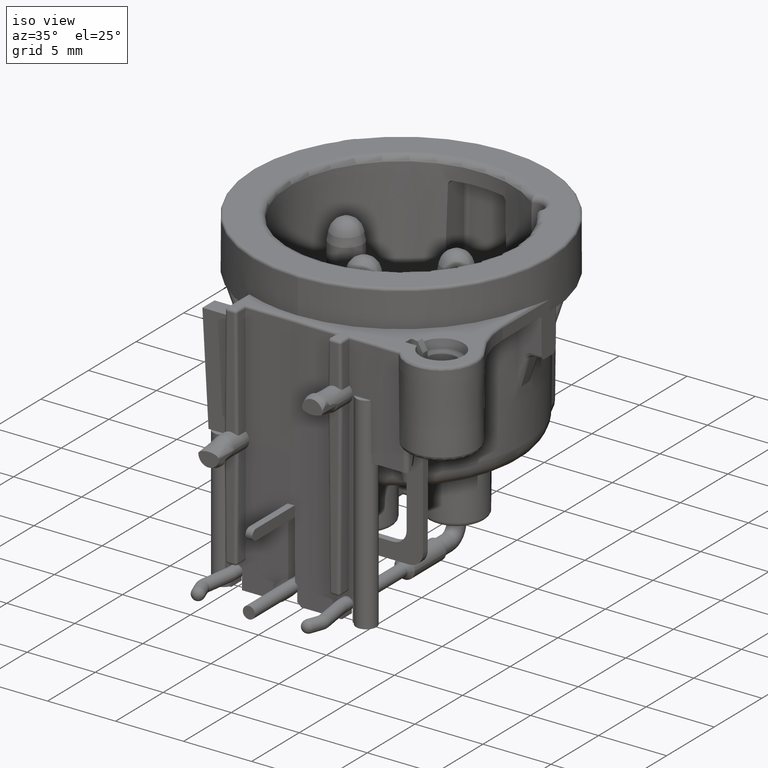
[diagram: clean part render]
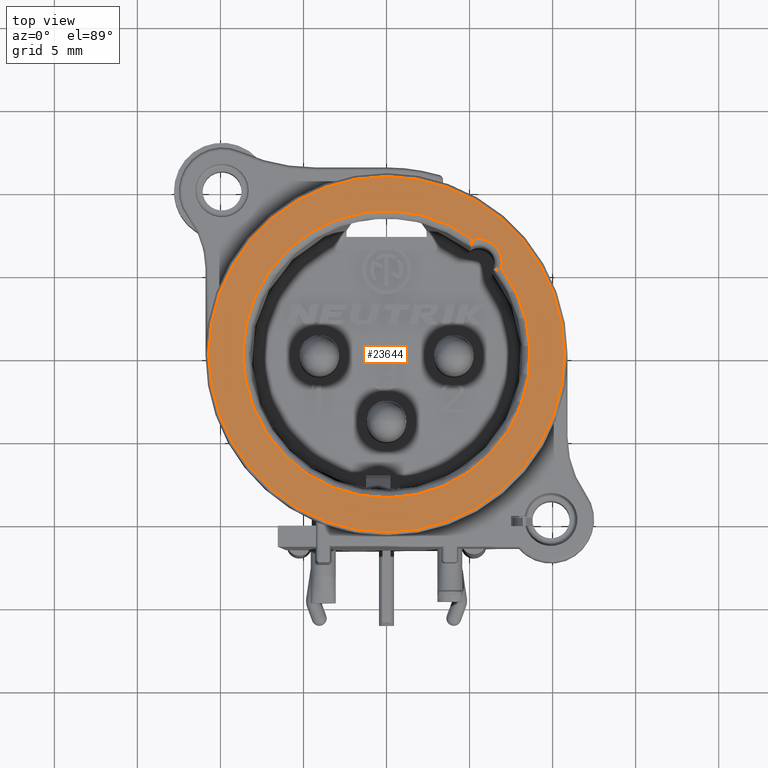
[diagram: tour spotlight — one face highlighted and labeled with its STEP entity id]
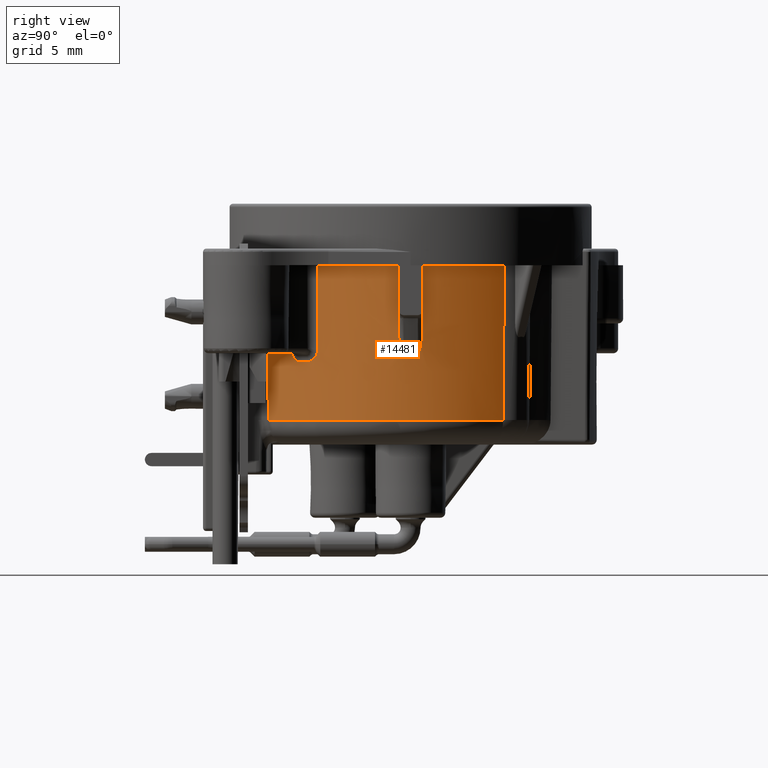
[diagram: tour spotlight — one face highlighted and labeled with its STEP entity id]
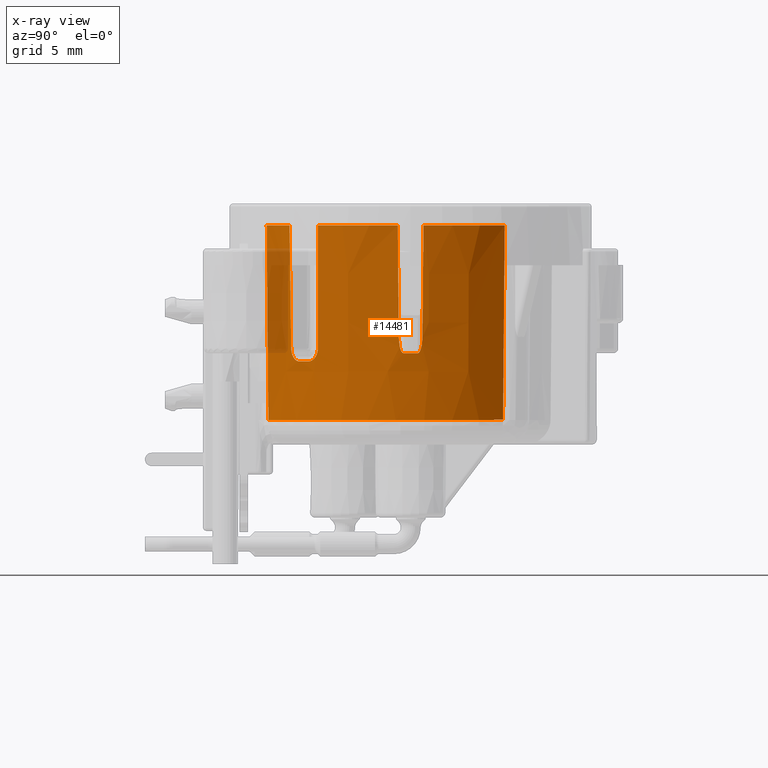
[diagram: x-ray of the same camera — body ghosted, this tour face saturated]
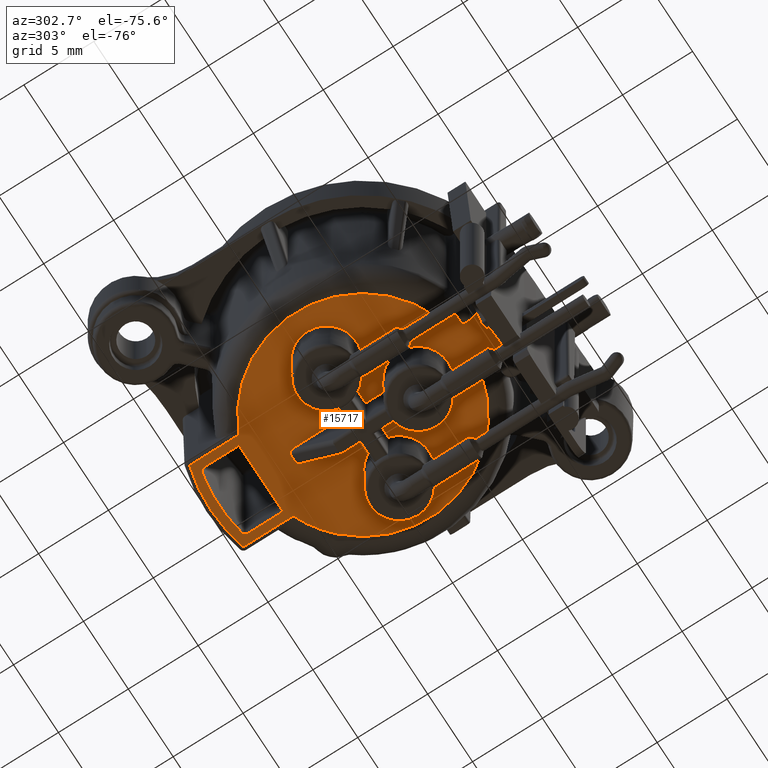
[diagram: tour spotlight — one face highlighted and labeled with its STEP entity id]
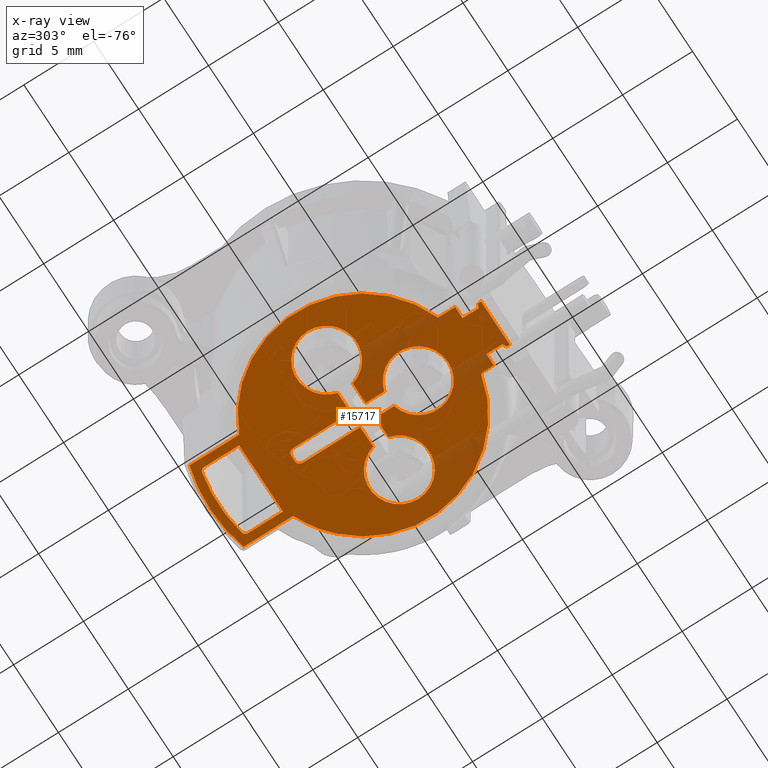
[diagram: x-ray of the same camera — body ghosted, this tour face saturated]
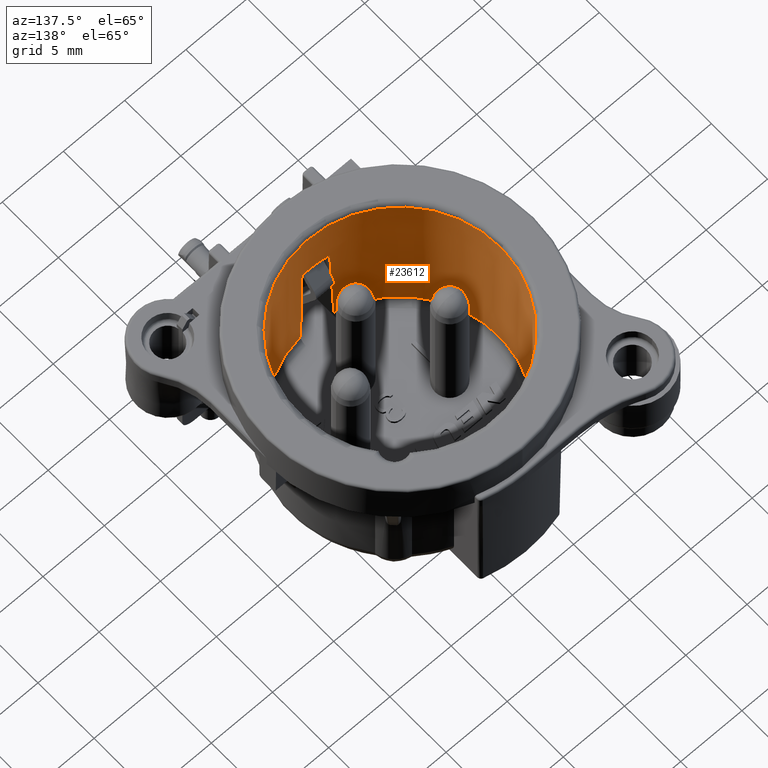
[diagram: tour spotlight — one face highlighted and labeled with its STEP entity id]
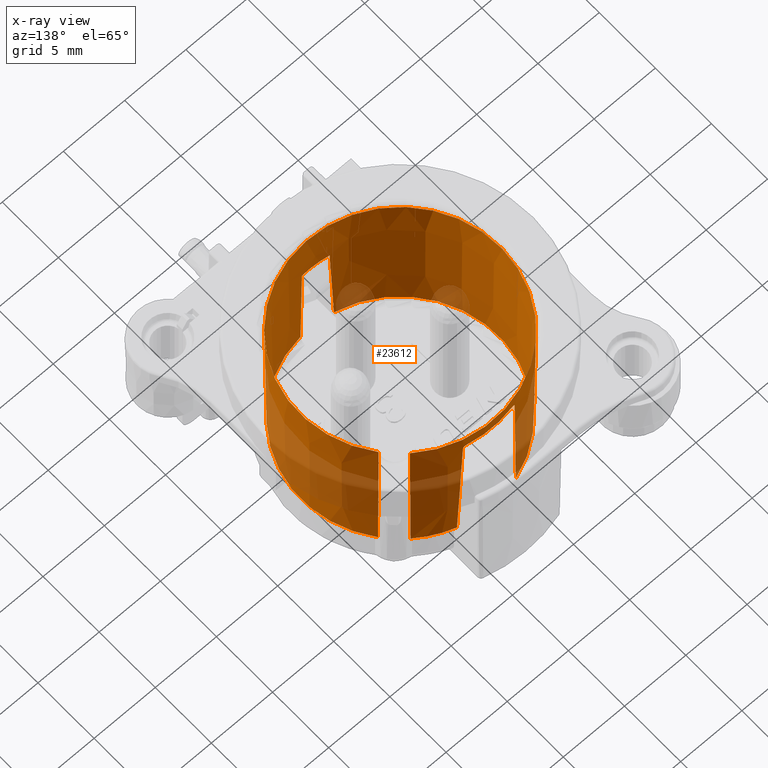
[diagram: x-ray of the same camera — body ghosted, this tour face saturated]
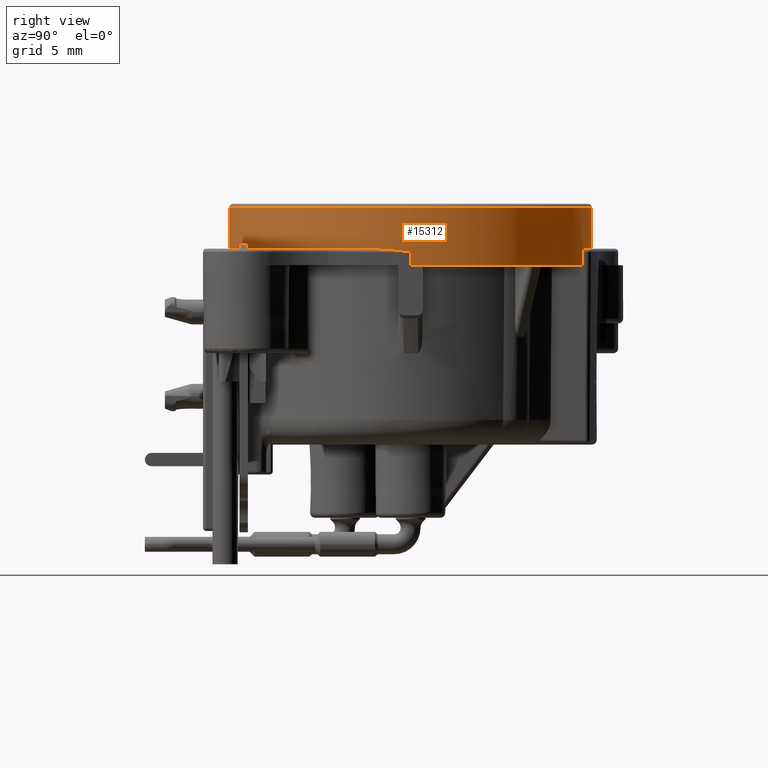
[diagram: tour spotlight — one face highlighted and labeled with its STEP entity id]
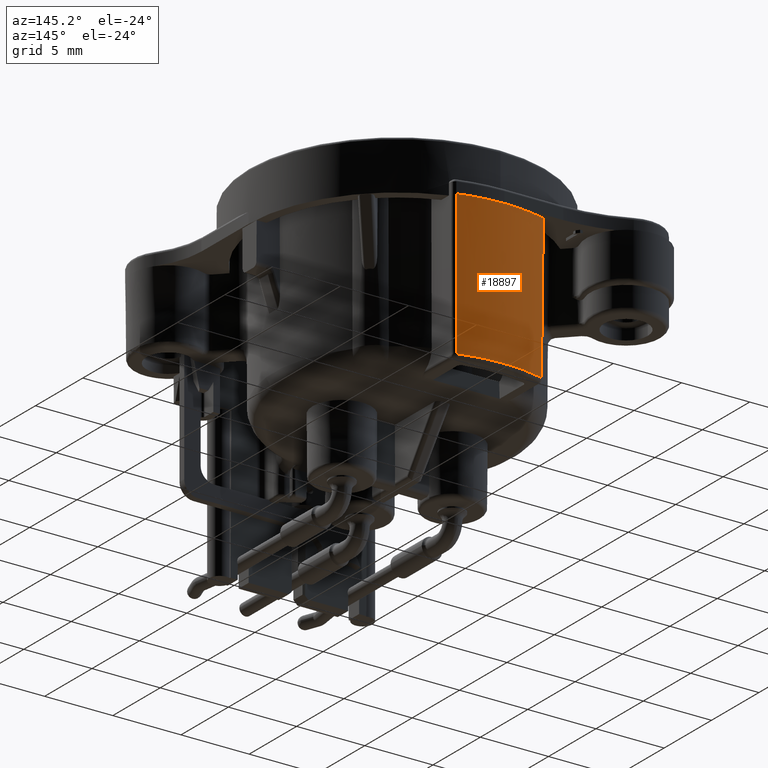
[diagram: tour spotlight — one face highlighted and labeled with its STEP entity id]
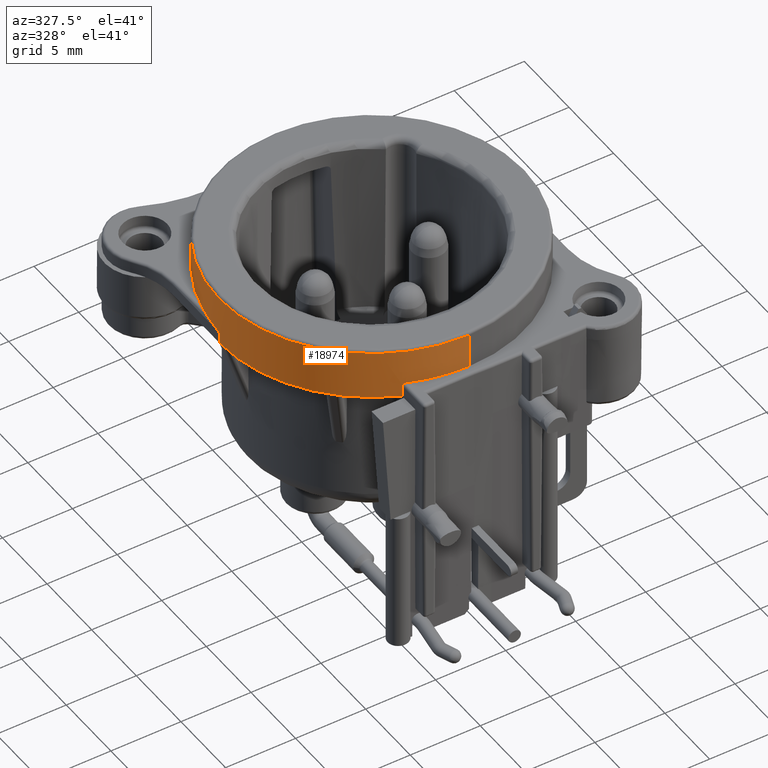
[diagram: tour spotlight — one face highlighted and labeled with its STEP entity id]
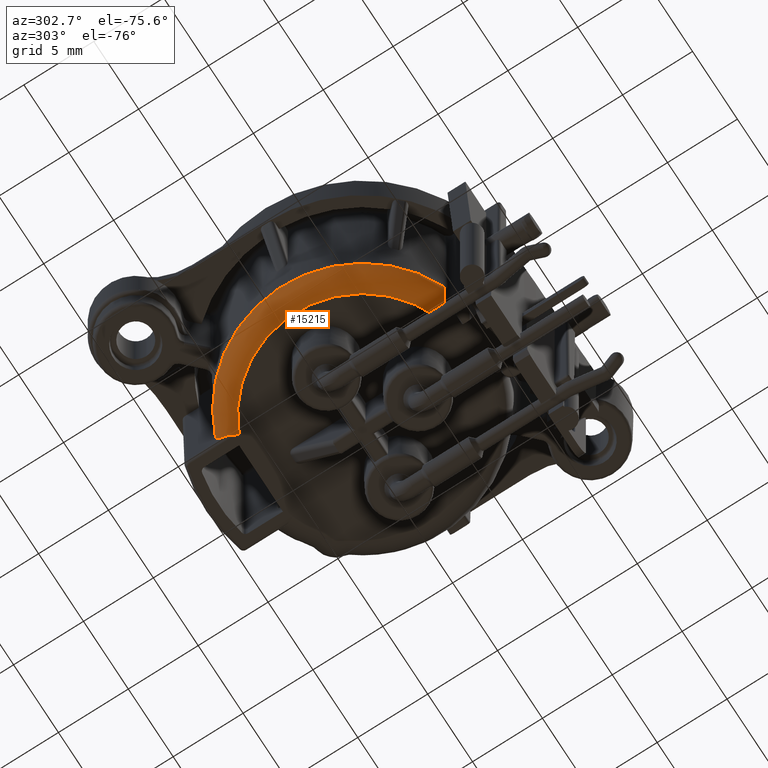
[diagram: tour spotlight — one face highlighted and labeled with its STEP entity id]
A machine part: a face-by-face anatomy tour. The part has 846 B-rep faces; the first image is the clean iso view, then the 8 largest visible faces are spotlighted one at a time (largest first), each with its STEP entity span.

Face 1 — top view, entity #23644. In plain terms, the highlighted planar face has unit normal (0, 0, -1).
Definition (entity closure, byte-faithful):
#8055=CARTESIAN_POINT('',(0.E0,0.E0,2.7E0));
#8056=DIRECTION('',(0.E0,0.E0,-1.E0));
#8057=DIRECTION('',(0.E0,1.E0,0.E0));
#8058=AXIS2_PLACEMENT_3D('',#8055,#8056,#8057);
#8060=CARTESIAN_POINT('',(0.E0,0.E0,2.7E0));
#8061=DIRECTION('',(0.E0,0.E0,1.E0));
#8062=DIRECTION('',(0.E0,1.E0,0.E0));
#8063=AXIS2_PLACEMENT_3D('',#8060,#8061,#8062);
#8065=CARTESIAN_POINT('',(5.515432893255E0,5.515432893255E0,2.7E0));
#8066=DIRECTION('',(0.E0,0.E0,-1.E0));
#8067=DIRECTION('',(-2.347327909641E-1,9.720599348015E-1,0.E0));
#8068=AXIS2_PLACEMENT_3D('',#8065,#8066,#8067);
#8070=CARTESIAN_POINT('',(0.E0,0.E0,2.7E0));
#8071=DIRECTION('',(0.E0,0.E0,1.E0));
#8072=DIRECTION('',(5.986206831713E-1,8.010326320941E-1,0.E0));
#8073=AXIS2_PLACEMENT_3D('',#8070,#8071,#8072);
#11103=CARTESIAN_POINT('',(0.E0,1.07E1,2.7E0));
#11104=VERTEX_POINT('',#11103);
#11106=CARTESIAN_POINT('',(0.E0,-1.07E1,2.7E0));
#11108=VERTEX_POINT('',#11106);
#12848=CARTESIAN_POINT('',(5.175070346357E0,6.924919798717E0,2.7E0));
#12849=CARTESIAN_POINT('',(6.924919798717E0,5.175070346357E0,2.7E0));
#12850=VERTEX_POINT('',#12848);
#12851=VERTEX_POINT('',#12849);
#23628=CARTESIAN_POINT('',(0.E0,0.E0,2.7E0));
#23629=DIRECTION('',(0.E0,0.E0,-1.E0));
#23630=DIRECTION('',(0.E0,-1.E0,0.E0));
#23631=AXIS2_PLACEMENT_3D('',#23628,#23629,#23630);
#23632=PLANE('',#23631);
#23634=ORIENTED_EDGE('',*,*,#23633,.T.);
#23636=ORIENTED_EDGE('',*,*,#23635,.F.);
#23637=EDGE_LOOP('',(#23634,#23636));
#23638=FACE_OUTER_BOUND('',#23637,.F.);
#23640=ORIENTED_EDGE('',*,*,#23639,.F.);
#23641=ORIENTED_EDGE('',*,*,#23618,.T.);
#23642=EDGE_LOOP('',(#23640,#23641));
#23643=FACE_BOUND('',#23642,.F.);
#23644=ADVANCED_FACE('',(#23638,#23643),#23632,.F.);
#8059=CIRCLE('',#8058,1.07E1);
#8064=CIRCLE('',#8063,1.07E1);
#8069=CIRCLE('',#8068,1.45E0);
#8074=CIRCLE('',#8073,8.644990879602E0);
#23618=EDGE_CURVE('',#12850,#12851,#8074,.T.);
#23633=EDGE_CURVE('',#11104,#11108,#8059,.T.);
#23635=EDGE_CURVE('',#11104,#11108,#8064,.T.);
#23639=EDGE_CURVE('',#12850,#12851,#8069,.T.);

Face 2 — right view, entity #14481. An x-ray twin of the same camera follows (body ghosted, this face saturated) — the face is partly hidden behind the body. In plain terms, the highlighted conical surface has half-angle 0.641 deg.
Definition (entity closure, byte-faithful):
#803=CARTESIAN_POINT('',(3.042368974453E0,-8.667080424023E0,1.403358004969E0));
#804=CARTESIAN_POINT('',(3.029560322480E0,-8.655899819648E0,8.194883666404E-2));
#805=CARTESIAN_POINT('',(3.003714410198E0,-8.633745569866E0,-2.548090206532E0));
#806=CARTESIAN_POINT('',(2.964214626370E0,-8.601146899914E0,-6.454885109434E0));
#807=CARTESIAN_POINT('',(2.937354932575E0,-8.579832894756E0,-9.033756492240E0));
#808=CARTESIAN_POINT('',(2.923784844769E0,-8.569287598486E0,-1.031678995470E1));
#810=CARTESIAN_POINT('',(0.E0,0.E0,1.403357998573E0));
#811=DIRECTION('',(0.E0,0.E0,1.E0));
#812=DIRECTION('',(3.312125720018E-1,-9.435561626888E-1,0.E0));
#813=AXIS2_PLACEMENT_3D('',#810,#811,#812);
#815=CARTESIAN_POINT('',(5.591531123141E0,-7.287603244203E0,1.403357944194E0));
#816=CARTESIAN_POINT('',(5.590463868982E0,-7.276839952748E0,5.824726081349E-1));
#817=CARTESIAN_POINT('',(5.588314621E0,-7.255285173554E0,-1.060540550242E0));
#818=CARTESIAN_POINT('',(5.585065718341E0,-7.222893642966E0,-3.528788196315E0));
#819=CARTESIAN_POINT('',(5.582879335508E0,-7.201254896715E0,-5.176771629095E0));
#820=CARTESIAN_POINT('',(5.581779788309E0,-7.190422864718E0,-6.001384590325E0));
#822=CARTESIAN_POINT('',(5.581779788309E0,-7.190422864718E0,-6.001384590325E0));
#823=CARTESIAN_POINT('',(5.581688916394E0,-7.189462323574E0,-6.074723518712E0));
#824=CARTESIAN_POINT('',(5.596160547819E0,-7.176259390182E0,-6.214936552988E0));
#825=CARTESIAN_POINT('',(5.658851391738E0,-7.124301787290E0,-6.412433439312E0));
#826=CARTESIAN_POINT('',(5.755986378348E0,-7.043900217507E0,-6.577575991962E0));
#827=CARTESIAN_POINT('',(5.877819893532E0,-6.940967077797E0,-6.701362911576E0));
#828=CARTESIAN_POINT('',(6.014992868118E0,-6.821427817209E0,-6.777310882413E0));
#829=CARTESIAN_POINT('',(6.108638552850E0,-6.736877329346E0,-6.794412403248E0));
#830=CARTESIAN_POINT('',(6.156586943048E0,-6.692780436750E0,-6.794403336569E0));
#832=CARTESIAN_POINT('',(0.E0,0.E0,-6.794403350942E0));
#833=DIRECTION('',(0.E0,0.E0,1.E0));
#834=DIRECTION('',(6.770106078906E-1,-7.359732582123E-1,0.E0));
#835=AXIS2_PLACEMENT_3D('',#832,#833,#834);
#837=CARTESIAN_POINT('',(6.690906659704E0,-6.158623291347E0,-6.794403336576E0));
#838=CARTESIAN_POINT('',(6.735018095909E0,-6.110688355989E0,-6.794412409217E0));
#839=CARTESIAN_POINT('',(6.819608475979E0,-6.017055692304E0,-6.777305163260E0));
#840=CARTESIAN_POINT('',(6.939213932720E0,-5.879891153914E0,-6.701348140227E0));
#841=CARTESIAN_POINT('',(7.042291268341E0,-5.757958849377E0,-6.577354877298E0));
#842=CARTESIAN_POINT('',(7.122620269172E0,-5.660969627472E0,-6.412259427837E0));
#843=CARTESIAN_POINT('',(7.174541608344E0,-5.598362614055E0,-6.214940372758E0));
#844=CARTESIAN_POINT('',(7.187754978287E0,-5.583887241181E0,-6.074732711306E0));
#845=CARTESIAN_POINT('',(7.188715717649E0,-5.583978259804E0,-6.001384590930E0));
#847=CARTESIAN_POINT('',(7.188715717649E0,-5.583978259804E0,-6.001384590930E0));
#848=CARTESIAN_POINT('',(7.199548619886E0,-5.585079565386E0,-5.176771629858E0));
#849=CARTESIAN_POINT('',(7.221189082894E0,-5.587269441037E0,-3.528788196392E0));
#850=CARTESIAN_POINT('',(7.253583210705E0,-5.590523588073E0,-1.060540550768E0));
#851=CARTESIAN_POINT('',(7.275139698904E0,-5.592676309286E0,5.824726079828E-1));
#852=CARTESIAN_POINT('',(7.285903845515E0,-5.593745297067E0,1.403357944225E0));
#854=CARTESIAN_POINT('',(0.E0,0.E0,1.403357998573E0));
#855=DIRECTION('',(0.E0,0.E0,1.E0));
#856=DIRECTION('',(7.931916520379E-1,-6.089720873221E-1,0.E0));
#857=AXIS2_PLACEMENT_3D('',#854,#855,#856);
#859=CARTESIAN_POINT('',(9.153135611065E0,-7.709737875074E-1,1.403357998573E0));
#860=CARTESIAN_POINT('',(9.129479956115E0,-7.513102354648E-1,
-8.498618867396E-1));
#861=CARTESIAN_POINT('',(9.105773497356E0,-7.316466880708E-1,
-3.103081239337E0));
#862=CARTESIAN_POINT('',(9.082015031956E0,-7.119831454675E-1,
-5.356300043020E0));
#864=CARTESIAN_POINT('',(0.E0,0.E0,-6.3E0));
#865=DIRECTION('',(0.E0,0.E0,-1.E0));
#866=DIRECTION('',(9.989461301423E-1,4.589802908331E-2,0.E0));
#867=AXIS2_PLACEMENT_3D('',#864,#865,#866);
#869=CARTESIAN_POINT('',(9.082015031956E0,7.119831454675E-1,-5.356300043019E0));
#870=CARTESIAN_POINT('',(9.105773497356E0,7.316466880709E-1,-3.103081239336E0));
#871=CARTESIAN_POINT('',(9.129479956115E0,7.513102354648E-1,
-8.498618867396E-1));
#872=CARTESIAN_POINT('',(9.153135611065E0,7.709737875074E-1,1.403357998573E0));
#874=CARTESIAN_POINT('',(0.E0,0.E0,1.403357998573E0));
#875=DIRECTION('',(0.E0,0.E0,1.E0));
#876=DIRECTION('',(9.964713710224E-1,8.393334696485E-2,0.E0));
#877=AXIS2_PLACEMENT_3D('',#874,#875,#876);
#879=CARTESIAN_POINT('',(7.140437789296E0,5.567395175180E0,-1.031442862793E1));
#880=CARTESIAN_POINT('',(7.150223841122E0,5.578449423502E0,-9.017797050694E0));
#881=CARTESIAN_POINT('',(7.169848487378E0,5.600616324616E0,-6.417651096091E0));
#882=CARTESIAN_POINT('',(7.199320988155E0,5.633913475130E0,-2.511249591525E0));
#883=CARTESIAN_POINT('',(7.219001771845E0,5.656149707206E0,9.773564388125E-2));
#884=CARTESIAN_POINT('',(7.228849537847E0,5.667276811198E0,1.403357998573E0));
#886=CARTESIAN_POINT('',(0.E0,0.E0,-1.031678999286E1));
#887=DIRECTION('',(0.E0,0.E0,-1.E0));
#888=DIRECTION('',(7.886176175624E-1,6.148839347959E-1,0.E0));
#889=AXIS2_PLACEMENT_3D('',#886,#887,#888);
#1332=CARTESIAN_POINT('',(2.923784844769E0,-8.569287598486E0,
-1.031678995470E1));
#3852=CARTESIAN_POINT('',(9.082015031956E0,-7.119831454675E-1,
-5.356300043020E0));
#3916=CARTESIAN_POINT('',(9.082015031956E0,7.119831454675E-1,
-5.356300043019E0));
#3944=CARTESIAN_POINT('',(9.082015031956E0,7.119831454675E-1,
-5.356300043019E0));
#3945=CARTESIAN_POINT('',(9.081559793519E0,7.116063704239E-1,
-5.399474202825E0));
#3946=CARTESIAN_POINT('',(9.080817064860E0,7.092219637401E-1,
-5.482280825095E0));
#3947=CARTESIAN_POINT('',(9.080126926094E0,7.017478697301E-1,
-5.595552771191E0));
#3948=CARTESIAN_POINT('',(9.079785548731E0,6.910919299087E-1,
-5.698859035043E0));
#3949=CARTESIAN_POINT('',(9.079735252506E0,6.777511387988E-1,
-5.793030116175E0));
#3950=CARTESIAN_POINT('',(9.079932228190E0,6.620017314221E-1,
-5.879120484164E0));
#3951=CARTESIAN_POINT('',(9.080347844861E0,6.439173900497E-1,
-5.958102139466E0));
#3952=CARTESIAN_POINT('',(9.080970173610E0,6.232884942974E-1,
-6.031109556129E0));
#3953=CARTESIAN_POINT('',(9.081813645660E0,5.994368164984E-1,
-6.099318648360E0));
#3954=CARTESIAN_POINT('',(9.082887334481E0,5.720324772394E-1,
-6.161481967666E0));
#3955=CARTESIAN_POINT('',(9.084191731056E0,5.408890956548E-1,
-6.215693121450E0));
#3956=CARTESIAN_POINT('',(9.085767126813E0,5.048695483757E-1,
-6.260823542410E0));
#3957=CARTESIAN_POINT('',(9.087662871738E0,4.627229985880E-1,
-6.292465610500E0));
#3958=CARTESIAN_POINT('',(9.089017782310E0,4.330739795036E-1,
-6.300000000046E0));
#3959=CARTESIAN_POINT('',(9.089726887270E0,4.176406881427E-1,
-6.300000000048E0));
#3965=CARTESIAN_POINT('',(9.089726887270E0,4.176406881427E-1,
-6.300000000048E0));
#3967=CARTESIAN_POINT('',(9.089726887270E0,-4.176406881370E-1,
-6.300000000049E0));
#3983=CARTESIAN_POINT('',(9.089726887270E0,-4.176406881370E-1,
-6.300000000049E0));
#3984=CARTESIAN_POINT('',(9.089035058997E0,-4.326979616115E-1,
-6.300000000047E0));
#3985=CARTESIAN_POINT('',(9.087731132140E0,-4.612339996078E-1,
-6.292736156332E0));
#3986=CARTESIAN_POINT('',(9.085993086998E0,-4.998277996628E-1,
-6.265092840494E0));
#3987=CARTESIAN_POINT('',(9.084531600403E0,-5.330468618853E-1,
-6.226517071273E0));
#3988=CARTESIAN_POINT('',(9.083263830619E0,-5.629013667611E-1,
-6.178708687401E0));
#3989=CARTESIAN_POINT('',(9.082178203672E0,-5.899098779032E-1,
-6.122418830707E0));
#3990=CARTESIAN_POINT('',(9.081298353270E0,-6.137050705272E-1,
-6.060025568678E0));
#3991=CARTESIAN_POINT('',(9.080632762049E0,-6.340682549744E-1,
-5.994451148883E0));
#3992=CARTESIAN_POINT('',(9.080151291351E0,-6.518225218017E-1,
-5.925212084133E0));
#3993=CARTESIAN_POINT('',(9.079842642861E0,-6.677203421170E-1,
-5.849691990159E0));
#3994=CARTESIAN_POINT('',(9.079728897381E0,-6.816176748070E-1,
-5.767736359119E0));
#3995=CARTESIAN_POINT('',(9.079836717915E0,-6.934376929991E-1,
-5.678320387952E0));
#3996=CARTESIAN_POINT('',(9.080206025471E0,-7.028818463127E-1,
-5.580666926970E0));
#3997=CARTESIAN_POINT('',(9.080886723335E0,-7.095067398138E-1,
-5.474085788966E0));
#3998=CARTESIAN_POINT('',(9.081590021276E0,-7.116313882241E-1,
-5.396607445774E0));
#3999=CARTESIAN_POINT('',(9.082015031956E0,-7.119831454675E-1,
-5.356300043020E0));
#11986=CARTESIAN_POINT('',(7.140457395026E0,5.567416041287E0,
-1.031206731110E1));
#11988=VERTEX_POINT('',#11986);
#12352=VERTEX_POINT('',#3965);
#12354=VERTEX_POINT('',#3916);
#12355=VERTEX_POINT('',#3852);
#12357=VERTEX_POINT('',#3967);
#12429=VERTEX_POINT('',#837);
#12430=VERTEX_POINT('',#845);
#12433=CARTESIAN_POINT('',(6.156586891126E0,-6.692780380277E0,
-6.794403350942E0));
#12434=VERTEX_POINT('',#12433);
#12437=VERTEX_POINT('',#822);
#12456=CARTESIAN_POINT('',(7.285899994516E0,-5.593742339926E0,
1.403357998573E0));
#12457=CARTESIAN_POINT('',(9.153135611065E0,-7.709737875074E-1,
1.403357998573E0));
#12458=VERTEX_POINT('',#12456);
#12459=VERTEX_POINT('',#12457);
#12488=CARTESIAN_POINT('',(9.153135611065E0,7.709737875074E-1,
1.403357998573E0));
#12489=CARTESIAN_POINT('',(7.228849537847E0,5.667276811198E0,1.403357998573E0));
#12490=VERTEX_POINT('',#12488);
#12491=VERTEX_POINT('',#12489);
#12576=CARTESIAN_POINT('',(5.591533499714E0,-7.287606491879E0,
1.403357899155E0));
#12578=VERTEX_POINT('',#12576);
#12995=VERTEX_POINT('',#1332);
#12999=VERTEX_POINT('',#803);
#14442=CARTESIAN_POINT('',(0.E0,0.E0,-4.456716026380E0));
#14443=DIRECTION('',(0.E0,0.E0,1.E0));
#14444=DIRECTION('',(0.E0,1.E0,0.E0));
#14445=AXIS2_PLACEMENT_3D('',#14442,#14443,#14444);
#14446=CONICAL_SURFACE('',#14445,9.119950158357E0,6.413438789425E-1);
#14448=ORIENTED_EDGE('',*,*,#14447,.F.);
#14450=ORIENTED_EDGE('',*,*,#14449,.T.);
#14452=ORIENTED_EDGE('',*,*,#14451,.T.);
#14454=ORIENTED_EDGE('',*,*,#14453,.T.);
#14456=ORIENTED_EDGE('',*,*,#14455,.T.);
#14458=ORIENTED_EDGE('',*,*,#14457,.T.);
#14460=ORIENTED_EDGE('',*,*,#14459,.T.);
#14462=ORIENTED_EDGE('',*,*,#14461,.T.);
#14464=ORIENTED_EDGE('',*,*,#14463,.T.);
#14466=ORIENTED_EDGE('',*,*,#14465,.F.);
#14468=ORIENTED_EDGE('',*,*,#14467,.F.);
#14470=ORIENTED_EDGE('',*,*,#14469,.F.);
#14472=ORIENTED_EDGE('',*,*,#14471,.T.);
#14474=ORIENTED_EDGE('',*,*,#14473,.T.);
#14476=ORIENTED_EDGE('',*,*,#14475,.F.);
#14478=ORIENTED_EDGE('',*,*,#14477,.T.);
#14479=EDGE_LOOP('',(#14448,#14450,#14452,#14454,#14456,#14458,#14460,#14462,
#14464,#14466,#14468,#14470,#14472,#14474,#14476,#14478));
#14480=FACE_OUTER_BOUND('',#14479,.F.);
#14481=ADVANCED_FACE('',(#14480),#14446,.T.);
#809=B_SPLINE_CURVE_WITH_KNOTS('',3,(#803,#804,#805,#806,#807,#808),
.UNSPECIFIED.,.F.,.F.,(4,1,1,4),(0.E0,3.333333333333E-1,6.666666666667E-1,1.E0),
.UNSPECIFIED.);
#814=CIRCLE('',#813,9.185548001920E0);
#821=B_SPLINE_CURVE_WITH_KNOTS('',3,(#815,#816,#817,#818,#819,#820),
.UNSPECIFIED.,.F.,.F.,(4,1,1,4),(0.E0,3.333333333333E-1,6.666666666667E-1,1.E0),
.UNSPECIFIED.);
#831=B_SPLINE_CURVE_WITH_KNOTS('',3,(#822,#823,#824,#825,#826,#827,#828,#829,
#830),.UNSPECIFIED.,.F.,.F.,(4,1,1,1,1,1,4),(0.E0,1.666666666667E-1,
3.333333333333E-1,5.E-1,6.666666666667E-1,8.333333333333E-1,1.E0),
.UNSPECIFIED.);
#836=CIRCLE('',#835,9.093782016664E0);
#846=B_SPLINE_CURVE_WITH_KNOTS('',3,(#837,#838,#839,#840,#841,#842,#843,#844,
#845),.UNSPECIFIED.,.F.,.F.,(4,1,1,1,1,1,4),(0.E0,1.666666666667E-1,
3.333333333333E-1,5.E-1,6.666666666667E-1,8.333333333333E-1,1.E0),
.UNSPECIFIED.);
#853=B_SPLINE_CURVE_WITH_KNOTS('',3,(#847,#848,#849,#850,#851,#852),
.UNSPECIFIED.,.F.,.F.,(4,1,1,4),(0.E0,3.333333333333E-1,6.666666666667E-1,1.E0),
.UNSPECIFIED.);
#858=CIRCLE('',#857,9.185548001920E0);
#863=B_SPLINE_CURVE_WITH_KNOTS('',3,(#859,#860,#861,#862),.UNSPECIFIED.,.F.,.F.,
(4,4),(0.E0,1.E0),.UNSPECIFIED.);
#868=CIRCLE('',#867,9.099316382533E0);
#873=B_SPLINE_CURVE_WITH_KNOTS('',3,(#869,#870,#871,#872),.UNSPECIFIED.,.F.,.F.,
(4,4),(0.E0,1.E0),.UNSPECIFIED.);
#878=CIRCLE('',#877,9.185548001920E0);
#885=B_SPLINE_CURVE_WITH_KNOTS('',3,(#879,#880,#881,#882,#883,#884),
.UNSPECIFIED.,.F.,.F.,(4,1,1,4),(0.E0,3.333333333333E-1,6.666666666667E-1,1.E0),
.UNSPECIFIED.);
#890=CIRCLE('',#889,9.054352315449E0);
#3960=B_SPLINE_CURVE_WITH_KNOTS('',3,(#3944,#3945,#3946,#3947,#3948,#3949,#3950,
#3951,#3952,#3953,#3954,#3955,#3956,#3957,#3958,#3959),.UNSPECIFIED.,.F.,.F.,(4,
1,1,1,1,1,1,1,1,1,1,1,1,4),(0.E0,7.692307692308E-2,1.538461538462E-1,
2.307692307692E-1,3.076923076923E-1,3.846153846154E-1,4.615384615385E-1,
5.384615384615E-1,6.153846153846E-1,6.923076923077E-1,7.692307692308E-1,
8.461538461538E-1,9.230769230769E-1,1.E0),.UNSPECIFIED.);
#4000=B_SPLINE_CURVE_WITH_KNOTS('',3,(#3983,#3984,#3985,#3986,#3987,#3988,#3989,
#3990,#3991,#3992,#3993,#3994,#3995,#3996,#3997,#3998,#3999),.UNSPECIFIED.,.F.,
.F.,(4,1,1,1,1,1,1,1,1,1,1,1,1,1,4),(0.E0,7.142857142857E-2,1.428571428571E-1,
2.142857142857E-1,2.857142857143E-1,3.571428571429E-1,4.285714285714E-1,5.E-1,
5.714285714286E-1,6.428571428571E-1,7.142857142857E-1,7.857142857143E-1,
8.571428571429E-1,9.285714285714E-1,1.E0),.UNSPECIFIED.);
#14447=EDGE_CURVE('',#12999,#12995,#809,.T.);
#14449=EDGE_CURVE('',#12999,#12578,#814,.T.);
#14451=EDGE_CURVE('',#12578,#12437,#821,.T.);
#14453=EDGE_CURVE('',#12437,#12434,#831,.T.);
#14455=EDGE_CURVE('',#12434,#12429,#836,.T.);
#14457=EDGE_CURVE('',#12429,#12430,#846,.T.);
#14459=EDGE_CURVE('',#12430,#12458,#853,.T.);
#14461=EDGE_CURVE('',#12458,#12459,#858,.T.);
#14463=EDGE_CURVE('',#12459,#12355,#863,.T.);
#14465=EDGE_CURVE('',#12357,#12355,#4000,.T.);
#14467=EDGE_CURVE('',#12352,#12357,#868,.T.);
#14469=EDGE_CURVE('',#12354,#12352,#3960,.T.);
#14471=EDGE_CURVE('',#12354,#12490,#873,.T.);
#14473=EDGE_CURVE('',#12490,#12491,#878,.T.);
#14475=EDGE_CURVE('',#11988,#12491,#885,.T.);
#14477=EDGE_CURVE('',#11988,#12995,#890,.T.);

Face 3 — auxiliary view, entity #15717. An x-ray twin of the same camera follows (body ghosted, this face saturated) — the face is partly hidden behind the body. In plain terms, the highlighted planar face has unit normal (0, 0, -1).
Definition (entity closure, byte-faithful):
#1253=CARTESIAN_POINT('',(0.E0,0.E0,-1.18E1));
#1254=DIRECTION('',(0.E0,0.E0,-1.E0));
#1255=DIRECTION('',(3.982232913773E-1,9.172885097965E-1,0.E0));
#1256=AXIS2_PLACEMENT_3D('',#1253,#1254,#1255);
#1258=CARTESIAN_POINT('',(5.341796241582E0,5.341804335915E0,-1.18E1));
#1308=CARTESIAN_POINT('',(-2.657487585741E0,-7.071592354266E0,-1.18E1));
#1317=CARTESIAN_POINT('',(0.E0,0.E0,-1.18E1));
#1318=DIRECTION('',(0.E0,0.E0,-1.E0));
#1319=DIRECTION('',(-3.517779444066E-1,-9.360834780238E-1,0.E0));
#1320=AXIS2_PLACEMENT_3D('',#1317,#1318,#1319);
#1390=CARTESIAN_POINT('',(0.E0,0.E0,-1.18E1));
#1391=DIRECTION('',(0.E0,0.E0,-1.E0));
#1392=DIRECTION('',(7.071061578009E-1,7.071074045716E-1,0.E0));
#1393=AXIS2_PLACEMENT_3D('',#1390,#1391,#1392);
#1750=DIRECTION('',(-1.E0,0.E0,0.E0));
#1751=VECTOR('',#1750,4.799454783885E-1);
#1752=CARTESIAN_POINT('',(2.399727391942E-1,5.E0,-1.18E1));
#1753=LINE('',#1752,#1751);
#1754=DIRECTION('',(0.E0,-1.E0,0.E0));
#1755=VECTOR('',#1754,4.086539683790E0);
#1756=CARTESIAN_POINT('',(5.383982182793E-1,4.624937902069E0,-1.18E1));
#1757=LINE('',#1756,#1755);
#1758=DIRECTION('',(1.E0,0.E0,0.E0));
#1759=VECTOR('',#1758,1.442091139445E0);
#1760=CARTESIAN_POINT('',(5.383982182793E-1,5.383982182793E-1,-1.18E1));
#1761=LINE('',#1760,#1759);
#1762=DIRECTION('',(-1.E0,0.E0,0.E0));
#1763=VECTOR('',#1762,1.442091139445E0);
#1764=CARTESIAN_POINT('',(1.980489357724E0,-5.383982182793E-1,-1.18E1));
#1765=LINE('',#1764,#1763);
#1766=DIRECTION('',(0.E0,-1.E0,0.E0));
#1767=VECTOR('',#1766,1.342091139445E0);
#1768=CARTESIAN_POINT('',(5.383982182793E-1,-5.383982182793E-1,-1.18E1));
#1769=LINE('',#1768,#1767);
#1770=DIRECTION('',(0.E0,1.E0,0.E0));
#1771=VECTOR('',#1770,1.342091139445E0);
#1772=CARTESIAN_POINT('',(-5.383982182793E-1,-1.880489357724E0,-1.18E1));
#1773=LINE('',#1772,#1771);
#1774=DIRECTION('',(-1.E0,0.E0,0.E0));
#1775=VECTOR('',#1774,1.442091139445E0);
#1776=CARTESIAN_POINT('',(-5.383982182793E-1,-5.383982182793E-1,-1.18E1));
#1777=LINE('',#1776,#1775);
#1778=DIRECTION('',(1.E0,0.E0,0.E0));
#1779=VECTOR('',#1778,1.442091139445E0);
#1780=CARTESIAN_POINT('',(-1.980489357724E0,5.383982182793E-1,-1.18E1));
#1781=LINE('',#1780,#1779);
#1782=DIRECTION('',(0.E0,1.E0,0.E0));
#1783=VECTOR('',#1782,4.086539683790E0);
#1784=CARTESIAN_POINT('',(-5.383982182793E-1,5.383982182793E-1,-1.18E1));
#1785=LINE('',#1784,#1783);
#1786=CARTESIAN_POINT('',(0.E0,0.E0,-1.18E1));
#1787=DIRECTION('',(0.E0,0.E0,1.E0));
#1788=DIRECTION('',(2.135815649978E-1,9.769252351603E-1,0.E0));
#1789=AXIS2_PLACEMENT_3D('',#1786,#1787,#1788);
#1791=DIRECTION('',(-1.E0,0.E0,0.E0));
#1792=VECTOR('',#1791,4.883452552956E0);
#1793=CARTESIAN_POINT('',(2.441726276478E0,7.3E0,-1.18E1));
#1794=LINE('',#1793,#1792);
#1795=DIRECTION('',(1.E0,0.E0,0.E0));
#1796=VECTOR('',#1795,8.285697617008E-1);
#1797=CARTESIAN_POINT('',(-2.656614898962E0,-8.3E0,-1.18E1));
#1798=LINE('',#1797,#1796);
#1799=DIRECTION('',(0.E0,1.E0,0.E0));
#1800=VECTOR('',#1799,2.190941932395E-1);
#1801=CARTESIAN_POINT('',(-2.1E0,-9.8E0,-1.18E1));
#1802=LINE('',#1801,#1800);
#1803=DIRECTION('',(0.E0,-1.E0,0.E0));
#1804=VECTOR('',#1803,2.190941932395E-1);
#1805=CARTESIAN_POINT('',(1.1E0,-9.580905806761E0,-1.18E1));
#1806=LINE('',#1805,#1804);
#1807=DIRECTION('',(1.E0,0.E0,0.E0));
#1808=VECTOR('',#1807,8.285697617006E-1);
#1809=CARTESIAN_POINT('',(8.280451372611E-1,-8.3E0,-1.18E1));
#1810=LINE('',#1809,#1808);
#1811=DIRECTION('',(9.387486636847E-4,9.999995593754E-1,0.E0));
#1812=VECTOR('',#1811,9.296277191490E-1);
#1813=CARTESIAN_POINT('',(1.656614898962E0,-8.3E0,-1.18E1));
#1814=LINE('',#1813,#1812);
#1815=DIRECTION('',(0.E0,1.E0,0.E0));
#1816=VECTOR('',#1815,3.556128162565E0);
#1817=CARTESIAN_POINT('',(3.008356464681E0,6.929606776339E0,-1.18E1));
#1818=LINE('',#1817,#1816);
#1819=CARTESIAN_POINT('',(0.E0,0.E0,-1.18E1));
#1820=DIRECTION('',(0.E0,0.E0,-1.E0));
#1821=DIRECTION('',(-2.757464950942E-1,9.612303940488E-1,0.E0));
#1822=AXIS2_PLACEMENT_3D('',#1819,#1820,#1821);
#1824=DIRECTION('',(0.E0,-1.E0,0.E0));
#1825=VECTOR('',#1824,3.556109640516E0);
#1826=CARTESIAN_POINT('',(-3.008356464681E0,1.048571641686E1,-1.18E1));
#1827=LINE('',#1826,#1825);
#1828=DIRECTION('',(7.104209762E-4,-9.999997476510E-1,0.E0));
#1829=VECTOR('',#1828,1.228407955722E0);
#1830=CARTESIAN_POINT('',(-2.657487585741E0,-7.071592354266E0,-1.18E1));
#1831=LINE('',#1830,#1829);
#2078=DIRECTION('',(-1.E0,0.E0,0.E0));
#2079=VECTOR('',#2078,3.2E0);
#2080=CARTESIAN_POINT('',(1.1E0,-9.8E0,-1.18E1));
#2081=LINE('',#2080,#2079);
#3082=DIRECTION('',(8.660254037844E-1,-5.E-1,0.E0));
#3083=VECTOR('',#3082,3.140264264195E-1);
#3084=CARTESIAN_POINT('',(8.280451372611E-1,-9.423892593551E0,-1.18E1));
#3085=LINE('',#3084,#3083);
#3126=DIRECTION('',(0.E0,1.E0,0.E0));
#3127=VECTOR('',#3126,1.123892593551E0);
#3128=CARTESIAN_POINT('',(8.280451372611E-1,-9.423892593551E0,-1.18E1));
#3129=LINE('',#3128,#3127);
#3278=DIRECTION('',(0.E0,1.E0,0.E0));
#3279=VECTOR('',#3278,1.123892593551E0);
#3280=CARTESIAN_POINT('',(-1.828045137261E0,-9.423892593551E0,-1.18E1));
#3281=LINE('',#3280,#3279);
#4566=CARTESIAN_POINT('',(3.008356464681E0,6.929606776339E0,-1.18E1));
#6549=CARTESIAN_POINT('',(0.E0,-3.95E0,-1.18E1));
#6550=DIRECTION('',(0.E0,0.E0,1.E0));
#6551=DIRECTION('',(-2.517764061329E-1,9.677854314438E-1,0.E0));
#6552=AXIS2_PLACEMENT_3D('',#6549,#6550,#6551);
#6740=CARTESIAN_POINT('',(4.05E0,0.E0,-1.18E1));
#6741=DIRECTION('',(0.E0,0.E0,1.E0));
#6742=DIRECTION('',(-9.677854314438E-1,-2.517764061329E-1,0.E0));
#6743=AXIS2_PLACEMENT_3D('',#6740,#6741,#6742);
#6777=CARTESIAN_POINT('',(5.383982182793E-1,4.624937902069E0,-1.18E1));
#6778=CARTESIAN_POINT('',(5.383982182793E-1,4.737185831572E0,-1.18E1));
#6779=CARTESIAN_POINT('',(4.908974293333E-1,4.858056936880E0,-1.18E1));
#6780=CARTESIAN_POINT('',(3.763711403295E-1,4.968026506881E0,-1.18E1));
#6781=CARTESIAN_POINT('',(2.960967039456E-1,5.E0,-1.18E1));
#6782=CARTESIAN_POINT('',(2.399727391942E-1,5.E0,-1.18E1));
#6796=CARTESIAN_POINT('',(-2.399727391942E-1,5.E0,-1.18E1));
#6797=CARTESIAN_POINT('',(-2.960967039455E-1,5.E0,-1.18E1));
#6798=CARTESIAN_POINT('',(-3.763711403295E-1,4.968026506881E0,-1.18E1));
#6799=CARTESIAN_POINT('',(-4.908974293333E-1,4.858056936880E0,-1.18E1));
#6800=CARTESIAN_POINT('',(-5.383982182793E-1,4.737185831572E0,-1.18E1));
#6801=CARTESIAN_POINT('',(-5.383982182793E-1,4.624937902069E0,-1.18E1));
#6846=CARTESIAN_POINT('',(-4.05E0,0.E0,-1.18E1));
#6847=DIRECTION('',(0.E0,0.E0,1.E0));
#6848=DIRECTION('',(9.677854314438E-1,2.517764061329E-1,0.E0));
#6849=AXIS2_PLACEMENT_3D('',#6846,#6847,#6848);
#8170=DIRECTION('',(0.E0,1.E0,0.E0));
#8171=VECTOR('',#8170,2.496476151628E0);
#8172=CARTESIAN_POINT('',(2.441726276478E0,7.3E0,-1.18E1));
#8173=LINE('',#8172,#8171);
#8179=CARTESIAN_POINT('',(2.441726276478E0,9.796476151628E0,-1.18E1));
#8185=CARTESIAN_POINT('',(2.441726276478E0,9.796476151628E0,-1.18E1));
#8186=CARTESIAN_POINT('',(2.441726276479E0,9.824208407336E0,-1.18E1));
#8187=CARTESIAN_POINT('',(2.434377550244E0,9.877440089598E0,-1.18E1));
#8188=CARTESIAN_POINT('',(2.401688424104E0,9.953522637232E0,-1.18E1));
#8189=CARTESIAN_POINT('',(2.350432866352E0,1.001704867774E1,-1.18E1));
#8190=CARTESIAN_POINT('',(2.283472524556E0,1.006491934245E1,-1.18E1));
#8191=CARTESIAN_POINT('',(2.232981891159E0,1.008354014806E1,-1.18E1));
#8192=CARTESIAN_POINT('',(2.205825251582E0,1.008947730412E1,-1.18E1));
#8199=CARTESIAN_POINT('',(2.205825251582E0,1.008947730412E1,-1.18E1));
#8201=CARTESIAN_POINT('',(-2.205825027800E0,1.008947738602E1,-1.18E1));
#8213=CARTESIAN_POINT('',(-2.205825027800E0,1.008947738602E1,-1.18E1));
#8214=CARTESIAN_POINT('',(-2.232982013615E0,1.008354015426E1,-1.18E1));
#8215=CARTESIAN_POINT('',(-2.283472467722E0,1.006491933957E1,-1.18E1));
#8216=CARTESIAN_POINT('',(-2.350432881586E0,1.001704867851E1,-1.18E1));
#8217=CARTESIAN_POINT('',(-2.401688420002E0,9.953522637024E0,-1.18E1));
#8218=CARTESIAN_POINT('',(-2.434377551415E0,9.877440089657E0,-1.18E1));
#8219=CARTESIAN_POINT('',(-2.441726276479E0,9.824208407336E0,-1.18E1));
#8220=CARTESIAN_POINT('',(-2.441726276478E0,9.796476151628E0,-1.18E1));
#8231=CARTESIAN_POINT('',(-2.441726276478E0,9.796476151628E0,-1.18E1));
#8238=DIRECTION('',(0.E0,-1.E0,0.E0));
#8239=VECTOR('',#8238,2.496476151628E0);
#8240=CARTESIAN_POINT('',(-2.441726276478E0,9.796476151628E0,-1.18E1));
#8241=LINE('',#8240,#8239);
#8375=DIRECTION('',(-8.660254037844E-1,-5.E-1,0.E0));
#8376=VECTOR('',#8375,3.140264264195E-1);
#8377=CARTESIAN_POINT('',(-1.828045137261E0,-9.423892593551E0,-1.18E1));
#8378=LINE('',#8377,#8376);
#11991=VERTEX_POINT('',#1258);
#11993=CARTESIAN_POINT('',(2.441726276478E0,7.3E0,-1.18E1));
#11994=CARTESIAN_POINT('',(-2.441726276478E0,7.3E0,-1.18E1));
#11995=VERTEX_POINT('',#11993);
#11996=VERTEX_POINT('',#11994);
#11999=CARTESIAN_POINT('',(1.980489357724E0,-5.383982182793E-1,-1.18E1));
#12000=CARTESIAN_POINT('',(5.383982182793E-1,-5.383982182793E-1,-1.18E1));
#12001=VERTEX_POINT('',#11999);
#12002=VERTEX_POINT('',#12000);
#12003=CARTESIAN_POINT('',(5.383982182793E-1,-1.880489357724E0,-1.18E1));
#12004=VERTEX_POINT('',#12003);
#12005=CARTESIAN_POINT('',(-5.383982182793E-1,-1.880489357724E0,-1.18E1));
#12006=CARTESIAN_POINT('',(-5.383982182793E-1,-5.383982182793E-1,-1.18E1));
#12007=VERTEX_POINT('',#12005);
#12008=VERTEX_POINT('',#12006);
#12009=CARTESIAN_POINT('',(-1.980489357724E0,-5.383982182793E-1,-1.18E1));
#12010=VERTEX_POINT('',#12009);
#12011=CARTESIAN_POINT('',(-1.980489357724E0,5.383982182793E-1,-1.18E1));
#12012=CARTESIAN_POINT('',(-5.383982182793E-1,5.383982182793E-1,-1.18E1));
#12013=VERTEX_POINT('',#12011);
#12014=VERTEX_POINT('',#12012);
#12015=CARTESIAN_POINT('',(5.383982182793E-1,5.383982182793E-1,-1.18E1));
#12016=CARTESIAN_POINT('',(1.980489357724E0,5.383982182793E-1,-1.18E1));
#12017=VERTEX_POINT('',#12015);
#12018=VERTEX_POINT('',#12016);
#12225=CARTESIAN_POINT('',(-5.383982182793E-1,4.624937902069E0,-1.18E1));
#12227=VERTEX_POINT('',#12225);
#12229=CARTESIAN_POINT('',(-2.399727391942E-1,5.E0,-1.18E1));
#12231=VERTEX_POINT('',#12229);
#12296=CARTESIAN_POINT('',(2.399727391942E-1,5.E0,-1.18E1));
#12298=VERTEX_POINT('',#12296);
#12299=CARTESIAN_POINT('',(5.383982182793E-1,4.624937902069E0,-1.18E1));
#12300=VERTEX_POINT('',#12299);
#12594=VERTEX_POINT('',#4566);
#12596=CARTESIAN_POINT('',(-3.008356464681E0,1.048532460833E1,-1.18E1));
#12597=VERTEX_POINT('',#12596);
#12598=CARTESIAN_POINT('',(-3.008356464681E0,6.929606776339E0,-1.18E1));
#12599=VERTEX_POINT('',#12598);
#12602=CARTESIAN_POINT('',(3.007921427693E0,1.048544941552E1,-1.18E1));
#12603=VERTEX_POINT('',#12602);
#12625=VERTEX_POINT('',#8199);
#12626=VERTEX_POINT('',#8179);
#12629=VERTEX_POINT('',#8231);
#12630=VERTEX_POINT('',#8201);
#12948=CARTESIAN_POINT('',(1.656614898962E0,-8.3E0,-1.18E1));
#12949=VERTEX_POINT('',#12948);
#12950=CARTESIAN_POINT('',(1.657487585741E0,-7.370372690468E0,-1.18E1));
#12951=VERTEX_POINT('',#12950);
#12962=CARTESIAN_POINT('',(-2.656614898962E0,-8.3E0,-1.18E1));
#12963=VERTEX_POINT('',#12962);
#12980=VERTEX_POINT('',#1308);
#13637=CARTESIAN_POINT('',(-1.828045137261E0,-9.423892593551E0,-1.18E1));
#13638=CARTESIAN_POINT('',(-1.828045137261E0,-8.3E0,-1.18E1));
#13639=VERTEX_POINT('',#13637);
#13640=VERTEX_POINT('',#13638);
#13645=CARTESIAN_POINT('',(8.280451372611E-1,-9.423892593551E0,-1.18E1));
#13646=CARTESIAN_POINT('',(8.280451372611E-1,-8.3E0,-1.18E1));
#13647=VERTEX_POINT('',#13645);
#13648=VERTEX_POINT('',#13646);
#13653=CARTESIAN_POINT('',(1.1E0,-9.580905806761E0,-1.18E1));
#13654=VERTEX_POINT('',#13653);
#13657=CARTESIAN_POINT('',(-2.1E0,-9.580905806761E0,-1.18E1));
#13658=VERTEX_POINT('',#13657);
#13662=CARTESIAN_POINT('',(1.1E0,-9.8E0,-1.18E1));
#13663=CARTESIAN_POINT('',(-2.1E0,-9.8E0,-1.18E1));
#13664=VERTEX_POINT('',#13662);
#13665=VERTEX_POINT('',#13663);
#15636=CARTESIAN_POINT('',(0.E0,0.E0,-1.18E1));
#15637=DIRECTION('',(0.E0,0.E0,-1.E0));
#15638=DIRECTION('',(0.E0,-1.E0,0.E0));
#15639=AXIS2_PLACEMENT_3D('',#15636,#15637,#15638);
#15640=PLANE('',#15639);
#15642=ORIENTED_EDGE('',*,*,#15641,.T.);
#15644=ORIENTED_EDGE('',*,*,#15643,.F.);
#15646=ORIENTED_EDGE('',*,*,#15645,.T.);
#15648=ORIENTED_EDGE('',*,*,#15647,.F.);
#15650=ORIENTED_EDGE('',*,*,#15649,.F.);
#15652=ORIENTED_EDGE('',*,*,#15651,.F.);
#15654=ORIENTED_EDGE('',*,*,#15653,.F.);
#15656=ORIENTED_EDGE('',*,*,#15655,.T.);
#15658=ORIENTED_EDGE('',*,*,#15657,.T.);
#15659=ORIENTED_EDGE('',*,*,#15168,.T.);
#15660=ORIENTED_EDGE('',*,*,#15231,.F.);
#15661=ORIENTED_EDGE('',*,*,#15183,.F.);
#15663=ORIENTED_EDGE('',*,*,#15662,.T.);
#15665=ORIENTED_EDGE('',*,*,#15664,.F.);
#15667=ORIENTED_EDGE('',*,*,#15666,.T.);
#15668=ORIENTED_EDGE('',*,*,#15204,.F.);
#15670=ORIENTED_EDGE('',*,*,#15669,.T.);
#15671=EDGE_LOOP('',(#15642,#15644,#15646,#15648,#15650,#15652,#15654,#15656,
#15658,#15659,#15660,#15661,#15663,#15665,#15667,#15668,#15670));
#15672=FACE_OUTER_BOUND('',#15671,.F.);
#15674=ORIENTED_EDGE('',*,*,#15673,.F.);
#15676=ORIENTED_EDGE('',*,*,#15675,.F.);
#15678=ORIENTED_EDGE('',*,*,#15677,.T.);
#15680=ORIENTED_EDGE('',*,*,#15679,.T.);
#15682=ORIENTED_EDGE('',*,*,#15681,.F.);
#15684=ORIENTED_EDGE('',*,*,#15683,.T.);
#15686=ORIENTED_EDGE('',*,*,#15685,.T.);
#15688=ORIENTED_EDGE('',*,*,#15687,.F.);
#15690=ORIENTED_EDGE('',*,*,#15689,.T.);
#15692=ORIENTED_EDGE('',*,*,#15691,.T.);
#15694=ORIENTED_EDGE('',*,*,#15693,.F.);
#15696=ORIENTED_EDGE('',*,*,#15695,.T.);
#15698=ORIENTED_EDGE('',*,*,#15697,.T.);
#15700=ORIENTED_EDGE('',*,*,#15699,.F.);
#15701=EDGE_LOOP('',(#15674,#15676,#15678,#15680,#15682,#15684,#15686,#15688,
#15690,#15692,#15694,#15696,#15698,#15700));
#15702=FACE_BOUND('',#15701,.F.);
#15704=ORIENTED_EDGE('',*,*,#15703,.F.);
#15706=ORIENTED_EDGE('',*,*,#15705,.F.);
#15708=ORIENTED_EDGE('',*,*,#15707,.F.);
#15710=ORIENTED_EDGE('',*,*,#15709,.T.);
#15712=ORIENTED_EDGE('',*,*,#15711,.F.);
#15714=ORIENTED_EDGE('',*,*,#15713,.F.);
#15715=EDGE_LOOP('',(#15704,#15706,#15708,#15710,#15712,#15714));
#15716=FACE_BOUND('',#15715,.F.);
#15717=ADVANCED_FACE('',(#15672,#15702,#15716),#15640,.T.);
#1257=CIRCLE('',#1256,7.554446286346E0);
#1321=CIRCLE('',#1320,7.554446286346E0);
#1394=CIRCLE('',#1393,7.554446286346E0);
#1790=CIRCLE('',#1789,1.032778859731E1);
#1823=CIRCLE('',#1822,1.090835646468E1);
#6553=CIRCLE('',#6552,2.138398218279E0);
#6744=CIRCLE('',#6743,2.138398218279E0);
#6783=B_SPLINE_CURVE_WITH_KNOTS('',3,(#6777,#6778,#6779,#6780,#6781,#6782),
.UNSPECIFIED.,.F.,.F.,(4,1,1,4),(0.E0,5.E-1,7.5E-1,1.E0),.UNSPECIFIED.);
#6802=B_SPLINE_CURVE_WITH_KNOTS('',3,(#6796,#6797,#6798,#6799,#6800,#6801),
.UNSPECIFIED.,.F.,.F.,(4,1,1,4),(0.E0,2.5E-1,5.E-1,1.E0),.UNSPECIFIED.);
#6850=CIRCLE('',#6849,2.138398218279E0);
#8193=B_SPLINE_CURVE_WITH_KNOTS('',3,(#8185,#8186,#8187,#8188,#8189,#8190,#8191,
#8192),.UNSPECIFIED.,.F.,.F.,(4,1,1,1,1,4),(0.E0,2.E-1,4.E-1,6.E-1,8.E-1,1.E0),
.UNSPECIFIED.);
#8221=B_SPLINE_CURVE_WITH_KNOTS('',3,(#8213,#8214,#8215,#8216,#8217,#8218,#8219,
#8220),.UNSPECIFIED.,.F.,.F.,(4,1,1,1,1,4),(0.E0,2.E-1,4.E-1,6.E-1,8.E-1,1.E0),
.UNSPECIFIED.);
#15168=EDGE_CURVE('',#12949,#12951,#1814,.T.);
#15183=EDGE_CURVE('',#12594,#11991,#1257,.T.);
#15204=EDGE_CURVE('',#12980,#12599,#1321,.T.);
#15231=EDGE_CURVE('',#11991,#12951,#1394,.T.);
#15641=EDGE_CURVE('',#12963,#13640,#1798,.T.);
#15643=EDGE_CURVE('',#13639,#13640,#3281,.T.);
#15645=EDGE_CURVE('',#13639,#13658,#8378,.T.);
#15647=EDGE_CURVE('',#13665,#13658,#1802,.T.);
#15649=EDGE_CURVE('',#13664,#13665,#2081,.T.);
#15651=EDGE_CURVE('',#13654,#13664,#1806,.T.);
#15653=EDGE_CURVE('',#13647,#13654,#3085,.T.);
#15655=EDGE_CURVE('',#13647,#13648,#3129,.T.);
#15657=EDGE_CURVE('',#13648,#12949,#1810,.T.);
#15662=EDGE_CURVE('',#12594,#12603,#1818,.T.);
#15664=EDGE_CURVE('',#12597,#12603,#1823,.T.);
#15666=EDGE_CURVE('',#12597,#12599,#1827,.T.);
#15669=EDGE_CURVE('',#12980,#12963,#1831,.T.);
#15673=EDGE_CURVE('',#12298,#12231,#1753,.T.);
#15675=EDGE_CURVE('',#12300,#12298,#6783,.T.);
#15677=EDGE_CURVE('',#12300,#12017,#1757,.T.);
#15679=EDGE_CURVE('',#12017,#12018,#1761,.T.);
#15681=EDGE_CURVE('',#12001,#12018,#6744,.T.);
#15683=EDGE_CURVE('',#12001,#12002,#1765,.T.);
#15685=EDGE_CURVE('',#12002,#12004,#1769,.T.);
#15687=EDGE_CURVE('',#12007,#12004,#6553,.T.);
#15689=EDGE_CURVE('',#12007,#12008,#1773,.T.);
#15691=EDGE_CURVE('',#12008,#12010,#1777,.T.);
#15693=EDGE_CURVE('',#12013,#12010,#6850,.T.);
#15695=EDGE_CURVE('',#12013,#12014,#1781,.T.);
#15697=EDGE_CURVE('',#12014,#12227,#1785,.T.);
#15699=EDGE_CURVE('',#12231,#12227,#6802,.T.);
#15703=EDGE_CURVE('',#12625,#12630,#1790,.T.);
#15705=EDGE_CURVE('',#12626,#12625,#8193,.T.);
#15707=EDGE_CURVE('',#11995,#12626,#8173,.T.);
#15709=EDGE_CURVE('',#11995,#11996,#1794,.T.);
#15711=EDGE_CURVE('',#12629,#11996,#8241,.T.);
#15713=EDGE_CURVE('',#12630,#12629,#8221,.T.);

Face 4 — auxiliary view, entity #23612. An x-ray twin of the same camera follows (body ghosted, this face saturated) — the face is partly hidden behind the body. In plain terms, the highlighted conical surface has half-angle 0.641 deg.
Definition (entity closure, byte-faithful):
#7991=CARTESIAN_POINT('',(0.E0,0.E0,2.255036997859E0));
#7992=DIRECTION('',(0.E0,0.E0,1.E0));
#7993=DIRECTION('',(6.213228504676E-1,7.835546665592E-1,0.E0));
#7994=AXIS2_PLACEMENT_3D('',#7991,#7992,#7993);
#7996=CARTESIAN_POINT('',(5.091724588613E0,6.421231771537E0,2.252518498929E0));
#7997=CARTESIAN_POINT('',(5.077710553204E0,6.414675851073E0,1.015773315523E0));
#7998=CARTESIAN_POINT('',(5.049151544188E0,6.400515145796E0,-1.559007952189E0));
#7999=CARTESIAN_POINT('',(5.005679543222E0,6.376265506630E0,-5.662964556299E0));
#8000=CARTESIAN_POINT('',(4.975522813807E0,6.357354286241E0,-8.654081353044E0));
#8001=CARTESIAN_POINT('',(4.960309734162E0,6.347201057011E0,-1.020559666429E1));
#8003=CARTESIAN_POINT('',(0.E0,0.E0,-1.020559666429E1));
#8004=DIRECTION('',(0.E0,0.E0,-1.E0));
#8005=DIRECTION('',(2.979287588914E-1,9.545881073141E-1,0.E0));
#8006=AXIS2_PLACEMENT_3D('',#8003,#8004,#8005);
#8008=CARTESIAN_POINT('',(0.E0,0.E0,1.25E0));
#8009=DIRECTION('',(0.E0,0.E0,1.E0));
#8010=DIRECTION('',(2.208949219550E-1,9.752976127595E-1,0.E0));
#8011=AXIS2_PLACEMENT_3D('',#8008,#8009,#8010);
#8013=CARTESIAN_POINT('',(0.E0,0.E0,-1.020559666429E1));
#8014=DIRECTION('',(0.E0,0.E0,1.E0));
#8015=DIRECTION('',(-2.979287588914E-1,9.545881073141E-1,0.E0));
#8016=AXIS2_PLACEMENT_3D('',#8013,#8014,#8015);
#8018=CARTESIAN_POINT('',(-1.571423105881E0,-7.994408146800E0,
-1.999999999924E0));
#8019=CARTESIAN_POINT('',(-1.643047339364E0,-7.949125280198E0,
-4.735219124970E0));
#8020=CARTESIAN_POINT('',(-1.714671052322E0,-7.902671977524E0,
-7.470418371957E0));
#8021=CARTESIAN_POINT('',(-1.786294216560E0,-7.854984843320E0,
-1.020559666421E1));
#8023=CARTESIAN_POINT('',(0.E0,0.E0,-2.E0));
#8024=DIRECTION('',(0.E0,0.E0,-1.E0));
#8025=DIRECTION('',(7.013574187161E-2,-9.975374567965E-1,0.E0));
#8026=AXIS2_PLACEMENT_3D('',#8023,#8024,#8025);
#8028=CARTESIAN_POINT('',(7.862942165610E-1,-8.017067750862E0,
-1.020559666423E1));
#8029=CARTESIAN_POINT('',(7.146708776776E-1,-8.054857039951E0,
-7.470411702565E0));
#8030=CARTESIAN_POINT('',(6.430471691741E-1,-8.091595320712E0,
-4.735212625680E0));
#8031=CARTESIAN_POINT('',(5.714231058816E-1,-8.127324764607E0,
-1.999999999946E0));
#8033=CARTESIAN_POINT('',(0.E0,0.E0,-1.020559666429E1));
#8034=DIRECTION('',(0.E0,0.E0,1.E0));
#8035=DIRECTION('',(9.760919398601E-2,-9.952248214597E-1,0.E0));
#8036=AXIS2_PLACEMENT_3D('',#8033,#8034,#8035);
#8038=CARTESIAN_POINT('',(6.347201057011E0,4.960309734162E0,-1.020559666429E1));
#8039=CARTESIAN_POINT('',(6.357336432683E0,4.975496062949E0,-8.656809555878E0));
#8040=CARTESIAN_POINT('',(6.376227296819E0,5.005614183265E0,-5.669255336482E0));
#8041=CARTESIAN_POINT('',(6.400516510980E0,5.049152055649E0,-1.558885516332E0));
#8042=CARTESIAN_POINT('',(6.414676299658E0,5.077711512006E0,1.015857931925E0));
#8043=CARTESIAN_POINT('',(6.421231771574E0,5.091724588596E0,2.252518498929E0));
#8161=CARTESIAN_POINT('',(2.107650136214E0,7.904325666769E0,9.578530845838E-1));
#8162=CARTESIAN_POINT('',(2.205093105538E0,7.835232373524E0,-2.763343783251E0));
#8163=CARTESIAN_POINT('',(2.302534879673E0,7.763764363829E0,-6.484495008624E0));
#8164=CARTESIAN_POINT('',(2.399975355777E0,7.689717303553E0,-1.020559666420E1));
#8222=CARTESIAN_POINT('',(-2.399975355777E0,7.689717303553E0,
-1.020559666420E1));
#8223=CARTESIAN_POINT('',(-2.302534879673E0,7.763764363829E0,
-6.484495008624E0));
#8224=CARTESIAN_POINT('',(-2.205093105538E0,7.835232373524E0,
-2.763343783251E0));
#8225=CARTESIAN_POINT('',(-2.107650136214E0,7.904325666769E0,
9.578530845838E-1));
#8273=CARTESIAN_POINT('',(-2.107650136216E0,7.904325666772E0,
9.578530844924E-1));
#8274=CARTESIAN_POINT('',(-2.106854466080E0,7.904889847753E0,
9.882385010890E-1));
#8275=CARTESIAN_POINT('',(-2.096005338290E0,7.908496228594E0,1.049022455849E0));
#8276=CARTESIAN_POINT('',(-2.052121716813E0,7.921008237667E0,1.132170454710E0));
#8277=CARTESIAN_POINT('',(-1.985558161946E0,7.938771313393E0,1.197569291688E0));
#8278=CARTESIAN_POINT('',(-1.901320350695E0,7.959907131232E0,1.240176532342E0));
#8279=CARTESIAN_POINT('',(-1.839064689372E0,7.974518243392E0,1.25E0));
#8280=CARTESIAN_POINT('',(-1.807752938723E0,7.981610034272E0,1.25E0));
#8295=CARTESIAN_POINT('',(1.807752938723E0,7.981610034272E0,1.25E0));
#8296=CARTESIAN_POINT('',(1.839064689372E0,7.974518243392E0,1.25E0));
#8297=CARTESIAN_POINT('',(1.901320350695E0,7.959907131232E0,1.240176532342E0));
#8298=CARTESIAN_POINT('',(1.985558161946E0,7.938771313393E0,1.197569291688E0));
#8299=CARTESIAN_POINT('',(2.052121716813E0,7.921008237667E0,1.132170454710E0));
#8300=CARTESIAN_POINT('',(2.096005338290E0,7.908496228594E0,1.049022455849E0));
#8301=CARTESIAN_POINT('',(2.106854466080E0,7.904889847753E0,9.882385010890E-1));
#8302=CARTESIAN_POINT('',(2.107650136216E0,7.904325666772E0,9.578530844924E-1));
#12165=CARTESIAN_POINT('',(5.714231058830E-1,-8.127324764609E0,-2.E0));
#12166=CARTESIAN_POINT('',(-1.571423105883E0,-7.994408146803E0,-2.E0));
#12167=VERTEX_POINT('',#12165);
#12168=VERTEX_POINT('',#12166);
#12609=CARTESIAN_POINT('',(-1.807752938723E0,7.981610034272E0,1.25E0));
#12611=VERTEX_POINT('',#12609);
#12613=CARTESIAN_POINT('',(-2.107650136216E0,7.904325666772E0,
9.578530844924E-1));
#12615=VERTEX_POINT('',#12613);
#12616=CARTESIAN_POINT('',(2.107650136216E0,7.904325666772E0,
9.578530844924E-1));
#12618=VERTEX_POINT('',#12616);
#12620=CARTESIAN_POINT('',(1.807752938723E0,7.981610034272E0,1.25E0));
#12622=VERTEX_POINT('',#12620);
#12815=CARTESIAN_POINT('',(7.862942165624E-1,-8.017067750864E0,
-1.020559666429E1));
#12816=CARTESIAN_POINT('',(6.347201057011E0,4.960309734162E0,
-1.020559666429E1));
#12817=VERTEX_POINT('',#12815);
#12818=VERTEX_POINT('',#12816);
#12819=CARTESIAN_POINT('',(-2.399975355779E0,7.689717303555E0,
-1.020559666429E1));
#12820=CARTESIAN_POINT('',(-1.786294216562E0,-7.854984843322E0,
-1.020559666429E1));
#12821=VERTEX_POINT('',#12819);
#12822=VERTEX_POINT('',#12820);
#12827=CARTESIAN_POINT('',(2.399975355779E0,7.689717303555E0,
-1.020559666429E1));
#12828=CARTESIAN_POINT('',(4.960309734162E0,6.347201057011E0,
-1.020559666429E1));
#12829=VERTEX_POINT('',#12827);
#12830=VERTEX_POINT('',#12828);
#12844=CARTESIAN_POINT('',(5.091696428133E0,6.421218413191E0,2.25E0));
#12845=CARTESIAN_POINT('',(6.421218413225E0,5.091696428206E0,2.25E0));
#12846=VERTEX_POINT('',#12844);
#12847=VERTEX_POINT('',#12845);
#23580=CARTESIAN_POINT('',(0.E0,0.E0,-3.975279833214E0));
#23581=DIRECTION('',(0.E0,0.E0,1.E0));
#23582=DIRECTION('',(0.E0,1.E0,0.E0));
#23583=AXIS2_PLACEMENT_3D('',#23580,#23581,#23582);
#23584=CONICAL_SURFACE('',#23583,8.125276718285E0,6.413438789425E-1);
#23586=ORIENTED_EDGE('',*,*,#23585,.F.);
#23588=ORIENTED_EDGE('',*,*,#23587,.T.);
#23590=ORIENTED_EDGE('',*,*,#23589,.F.);
#23592=ORIENTED_EDGE('',*,*,#23591,.F.);
#23594=ORIENTED_EDGE('',*,*,#23593,.F.);
#23596=ORIENTED_EDGE('',*,*,#23595,.T.);
#23598=ORIENTED_EDGE('',*,*,#23597,.F.);
#23600=ORIENTED_EDGE('',*,*,#23599,.F.);
#23602=ORIENTED_EDGE('',*,*,#23601,.T.);
#23603=ORIENTED_EDGE('',*,*,#16719,.F.);
#23604=ORIENTED_EDGE('',*,*,#23572,.F.);
#23605=ORIENTED_EDGE('',*,*,#16569,.F.);
#23607=ORIENTED_EDGE('',*,*,#23606,.T.);
#23609=ORIENTED_EDGE('',*,*,#23608,.T.);
#23610=EDGE_LOOP('',(#23586,#23588,#23590,#23592,#23594,#23596,#23598,#23600,
#23602,#23603,#23604,#23605,#23607,#23609));
#23611=FACE_OUTER_BOUND('',#23610,.F.);
#23612=ADVANCED_FACE('',(#23611),#23584,.F.);
#7995=CIRCLE('',#7994,8.195019070872E0);
#8002=B_SPLINE_CURVE_WITH_KNOTS('',3,(#7996,#7997,#7998,#7999,#8000,#8001),
.UNSPECIFIED.,.F.,.F.,(4,1,1,4),(0.E0,3.333333333333E-1,6.666666666667E-1,1.E0),
.UNSPECIFIED.);
#8007=CIRCLE('',#8006,8.055534365698E0);
#8012=CIRCLE('',#8011,8.183768656716E0);
#8017=CIRCLE('',#8016,8.055534365698E0);
#8022=B_SPLINE_CURVE_WITH_KNOTS('',3,(#8018,#8019,#8020,#8021),.UNSPECIFIED.,
.F.,.F.,(4,4),(0.E0,1.E0),.UNSPECIFIED.);
#8027=CIRCLE('',#8026,8.147388059701E0);
#8032=B_SPLINE_CURVE_WITH_KNOTS('',3,(#8028,#8029,#8030,#8031),.UNSPECIFIED.,
.F.,.F.,(4,4),(0.E0,1.E0),.UNSPECIFIED.);
#8037=CIRCLE('',#8036,8.055534365698E0);
#8044=B_SPLINE_CURVE_WITH_KNOTS('',3,(#8038,#8039,#8040,#8041,#8042,#8043),
.UNSPECIFIED.,.F.,.F.,(4,1,1,4),(0.E0,3.333333333333E-1,6.666666666667E-1,1.E0),
.UNSPECIFIED.);
#8165=B_SPLINE_CURVE_WITH_KNOTS('',3,(#8161,#8162,#8163,#8164),.UNSPECIFIED.,
.F.,.F.,(4,4),(0.E0,1.E0),.UNSPECIFIED.);
#8226=B_SPLINE_CURVE_WITH_KNOTS('',3,(#8222,#8223,#8224,#8225),.UNSPECIFIED.,
.F.,.F.,(4,4),(0.E0,1.E0),.UNSPECIFIED.);
#8281=B_SPLINE_CURVE_WITH_KNOTS('',3,(#8273,#8274,#8275,#8276,#8277,#8278,#8279,
#8280),.UNSPECIFIED.,.F.,.F.,(4,1,1,1,1,4),(0.E0,2.E-1,4.E-1,6.E-1,8.E-1,1.E0),
.UNSPECIFIED.);
#8303=B_SPLINE_CURVE_WITH_KNOTS('',3,(#8295,#8296,#8297,#8298,#8299,#8300,#8301,
#8302),.UNSPECIFIED.,.F.,.F.,(4,1,1,1,1,4),(0.E0,2.E-1,4.E-1,6.E-1,8.E-1,1.E0),
.UNSPECIFIED.);
#16569=EDGE_CURVE('',#12817,#12167,#8032,.T.);
#16719=EDGE_CURVE('',#12168,#12822,#8022,.T.);
#23572=EDGE_CURVE('',#12167,#12168,#8027,.T.);
#23585=EDGE_CURVE('',#12846,#12847,#7995,.T.);
#23587=EDGE_CURVE('',#12846,#12830,#8002,.T.);
#23589=EDGE_CURVE('',#12829,#12830,#8007,.T.);
#23591=EDGE_CURVE('',#12618,#12829,#8165,.T.);
#23593=EDGE_CURVE('',#12622,#12618,#8303,.T.);
#23595=EDGE_CURVE('',#12622,#12611,#8012,.T.);
#23597=EDGE_CURVE('',#12615,#12611,#8281,.T.);
#23599=EDGE_CURVE('',#12821,#12615,#8226,.T.);
#23601=EDGE_CURVE('',#12821,#12822,#8017,.T.);
#23606=EDGE_CURVE('',#12817,#12818,#8037,.T.);
#23608=EDGE_CURVE('',#12818,#12847,#8044,.T.);

Face 5 — right view, entity #15312. In plain terms, the highlighted cylindrical surface (partial cylindrical patch) has radius 10.9 mm, axis along (0, 0, -1).
Definition (entity closure, byte-faithful):
#1455=DIRECTION('',(0.E0,0.E0,1.E0));
#1456=VECTOR('',#1455,8.E-1);
#1457=CARTESIAN_POINT('',(3.4E0,1.035615758860E1,-1.E0));
#1458=LINE('',#1457,#1456);
#1459=CARTESIAN_POINT('',(3.4E0,1.035615758860E1,-2.E-1));
#1460=CARTESIAN_POINT('',(3.4E0,1.035615758860E1,-1.745480745635E-1));
#1461=CARTESIAN_POINT('',(3.390019336780E0,1.035944092689E1,
-1.233733340761E-1));
#1462=CARTESIAN_POINT('',(3.347945812768E0,1.037315677371E1,
-5.781691031006E-2));
#1463=CARTESIAN_POINT('',(3.280658445721E0,1.039468014454E1,
-1.099641432390E-2));
#1464=CARTESIAN_POINT('',(3.227176987830E0,1.041134654785E1,0.E0));
#1465=CARTESIAN_POINT('',(3.2E0,1.041969289375E1,0.E0));
#1467=CARTESIAN_POINT('',(0.E0,0.E0,0.E0));
#1468=DIRECTION('',(0.E0,0.E0,-1.E0));
#1469=DIRECTION('',(9.816513761468E-1,-1.906844925764E-1,0.E0));
#1470=AXIS2_PLACEMENT_3D('',#1467,#1468,#1469);
#1472=CARTESIAN_POINT('',(0.E0,0.E0,0.E0));
#1473=DIRECTION('',(0.E0,0.E0,-1.E0));
#1474=DIRECTION('',(0.E0,1.E0,0.E0));
#1475=AXIS2_PLACEMENT_3D('',#1472,#1473,#1474);
#1477=CARTESIAN_POINT('',(0.E0,0.E0,-1.E0));
#1478=DIRECTION('',(0.E0,0.E0,-1.E0));
#1479=DIRECTION('',(3.119266055046E-1,9.501062007894E-1,0.E0));
#1480=AXIS2_PLACEMENT_3D('',#1477,#1478,#1479);
#1486=DIRECTION('',(0.E0,0.E0,-1.E0));
#1487=VECTOR('',#1486,8.E-1);
#1488=CARTESIAN_POINT('',(1.09E1,0.E0,-2.E-1));
#1489=LINE('',#1488,#1487);
#1495=CARTESIAN_POINT('',(1.07E1,-2.078460969083E0,0.E0));
#1496=CARTESIAN_POINT('',(1.072835154104E1,-1.932506104555E0,0.E0));
#1497=CARTESIAN_POINT('',(1.078149894615E1,-1.626947728727E0,
-1.185060056974E-2));
#1498=CARTESIAN_POINT('',(1.084539903692E1,-1.130129955535E0,
-5.575019531329E-2));
#1499=CARTESIAN_POINT('',(1.088875606583E1,-5.917208794571E-1,
-1.199565679547E-1));
#1500=CARTESIAN_POINT('',(1.09E1,-2.021296577522E-1,-1.726201042942E-1));
#1501=CARTESIAN_POINT('',(1.09E1,0.E0,-2.E-1));
#4676=DIRECTION('',(0.E0,0.E0,1.E0));
#4677=VECTOR('',#4676,2.5E0);
#4678=CARTESIAN_POINT('',(0.E0,1.09E1,0.E0));
#4679=LINE('',#4678,#4677);
#4680=DIRECTION('',(0.E0,0.E0,1.E0));
#4681=VECTOR('',#4680,2.5E0);
#4682=CARTESIAN_POINT('',(0.E0,-1.09E1,0.E0));
#4683=LINE('',#4682,#4681);
#8075=CARTESIAN_POINT('',(0.E0,0.E0,2.5E0));
#8076=DIRECTION('',(0.E0,0.E0,-1.E0));
#8077=DIRECTION('',(0.E0,1.E0,0.E0));
#8078=AXIS2_PLACEMENT_3D('',#8075,#8076,#8077);
#11099=CARTESIAN_POINT('',(0.E0,1.09E1,0.E0));
#11100=CARTESIAN_POINT('',(0.E0,1.09E1,2.5E0));
#11101=VERTEX_POINT('',#11099);
#11102=VERTEX_POINT('',#11100);
#11105=CARTESIAN_POINT('',(0.E0,-1.09E1,2.5E0));
#11107=VERTEX_POINT('',#11105);
#11117=CARTESIAN_POINT('',(1.09E1,0.E0,-1.E0));
#11118=VERTEX_POINT('',#11117);
#11119=CARTESIAN_POINT('',(0.E0,-1.09E1,0.E0));
#11120=VERTEX_POINT('',#11119);
#12701=CARTESIAN_POINT('',(3.4E0,1.035615758860E1,-1.E0));
#12702=VERTEX_POINT('',#12701);
#12728=CARTESIAN_POINT('',(1.09E1,0.E0,-2.E-1));
#12730=VERTEX_POINT('',#12728);
#12732=CARTESIAN_POINT('',(1.07E1,-2.078460969083E0,0.E0));
#12734=VERTEX_POINT('',#12732);
#12783=VERTEX_POINT('',#1459);
#12784=VERTEX_POINT('',#1465);
#15290=CARTESIAN_POINT('',(0.E0,0.E0,3.425E0));
#15291=DIRECTION('',(0.E0,0.E0,-1.E0));
#15292=DIRECTION('',(0.E0,-1.E0,0.E0));
#15293=AXIS2_PLACEMENT_3D('',#15290,#15291,#15292);
#15294=CYLINDRICAL_SURFACE('',#15293,1.09E1);
#15296=ORIENTED_EDGE('',*,*,#15295,.F.);
#15298=ORIENTED_EDGE('',*,*,#15297,.F.);
#15299=ORIENTED_EDGE('',*,*,#14087,.T.);
#15301=ORIENTED_EDGE('',*,*,#15300,.T.);
#15303=ORIENTED_EDGE('',*,*,#15302,.F.);
#15305=ORIENTED_EDGE('',*,*,#15304,.F.);
#15306=ORIENTED_EDGE('',*,*,#14037,.T.);
#15307=ORIENTED_EDGE('',*,*,#15281,.F.);
#15308=ORIENTED_EDGE('',*,*,#15271,.F.);
#15309=ORIENTED_EDGE('',*,*,#13757,.T.);
#15310=EDGE_LOOP('',(#15296,#15298,#15299,#15301,#15303,#15305,#15306,#15307,
#15308,#15309));
#15311=FACE_OUTER_BOUND('',#15310,.F.);
#15312=ADVANCED_FACE('',(#15311),#15294,.T.);
#1466=B_SPLINE_CURVE_WITH_KNOTS('',3,(#1459,#1460,#1461,#1462,#1463,#1464,
#1465),.UNSPECIFIED.,.F.,.F.,(4,1,1,1,4),(0.E0,2.5E-1,5.E-1,7.5E-1,1.E0),
.UNSPECIFIED.);
#1471=CIRCLE('',#1470,1.09E1);
#1476=CIRCLE('',#1475,1.09E1);
#1481=CIRCLE('',#1480,1.09E1);
#1502=B_SPLINE_CURVE_WITH_KNOTS('',3,(#1495,#1496,#1497,#1498,#1499,#1500,
#1501),.UNSPECIFIED.,.F.,.F.,(4,1,1,1,4),(0.E0,2.5E-1,5.E-1,7.5E-1,1.E0),
.UNSPECIFIED.);
#8079=CIRCLE('',#8078,1.09E1);
#13757=EDGE_CURVE('',#12702,#11118,#1481,.T.);
#14037=EDGE_CURVE('',#11101,#12784,#1476,.T.);
#14087=EDGE_CURVE('',#12734,#11120,#1471,.T.);
#15271=EDGE_CURVE('',#12702,#12783,#1458,.T.);
#15281=EDGE_CURVE('',#12783,#12784,#1466,.T.);
#15295=EDGE_CURVE('',#12730,#11118,#1489,.T.);
#15297=EDGE_CURVE('',#12734,#12730,#1502,.T.);
#15300=EDGE_CURVE('',#11120,#11107,#4683,.T.);
#15302=EDGE_CURVE('',#11102,#11107,#8079,.T.);
#15304=EDGE_CURVE('',#11101,#11102,#4679,.T.);

Face 6 — auxiliary view, entity #18897. In plain terms, the highlighted conical surface has half-angle 0.5 deg.
Definition (entity closure, byte-faithful):
#59=CARTESIAN_POINT('',(0.E0,0.E0,-1.E0));
#60=DIRECTION('',(0.E0,0.E0,-1.E0));
#61=DIRECTION('',(-2.818189235223E-1,9.594676098466E-1,0.E0));
#62=AXIS2_PLACEMENT_3D('',#59,#60,#61);
#4611=CARTESIAN_POINT('',(-3.091088675606E0,1.077367947227E1,
-1.150261796065E1));
#4612=CARTESIAN_POINT('',(-3.101496538386E0,1.078130966972E1,
-1.033328406076E1));
#4613=CARTESIAN_POINT('',(-3.122297037554E0,1.079654267235E1,
-7.996200490633E0));
#4614=CARTESIAN_POINT('',(-3.153452083450E0,1.081931056721E1,
-4.495327835289E0));
#4615=CARTESIAN_POINT('',(-3.174191665981E0,1.083443512990E1,
-2.164581199127E0));
#4616=CARTESIAN_POINT('',(-3.184553867421E0,1.084198398470E1,-1.E0));
#4618=CARTESIAN_POINT('',(0.E0,0.E0,-1.150261796065E1));
#4619=DIRECTION('',(0.E0,0.E0,-1.E0));
#4620=DIRECTION('',(-2.757845720534E-1,9.612194701614E-1,0.E0));
#4621=AXIS2_PLACEMENT_3D('',#4618,#4619,#4620);
#4623=CARTESIAN_POINT('',(3.091088675606E0,1.077367947227E1,-1.150261796065E1));
#4624=CARTESIAN_POINT('',(3.101496538531E0,1.078130966982E1,-1.033328404449E1));
#4625=CARTESIAN_POINT('',(3.122297039852E0,1.079654267166E1,-7.996200452674E0));
#4626=CARTESIAN_POINT('',(3.153452076925E0,1.081931057074E1,-4.495327797325E0));
#4627=CARTESIAN_POINT('',(3.174191680832E0,1.083443512297E1,-2.164581182861E0));
#4628=CARTESIAN_POINT('',(3.184553882127E0,1.084198397766E1,-1.000000000004E0));
#4630=CARTESIAN_POINT('',(0.E0,0.E0,-1.E0));
#4631=DIRECTION('',(0.E0,0.E0,-1.E0));
#4632=DIRECTION('',(0.E0,1.E0,0.E0));
#4633=AXIS2_PLACEMENT_3D('',#4630,#4631,#4632);
#12592=VERTEX_POINT('',#4611);
#12593=VERTEX_POINT('',#4616);
#12604=CARTESIAN_POINT('',(3.091088640724E0,1.077367948227E1,
-1.150261796065E1));
#12605=VERTEX_POINT('',#12604);
#12695=CARTESIAN_POINT('',(0.E0,1.13E1,-1.E0));
#12696=VERTEX_POINT('',#12695);
#12697=CARTESIAN_POINT('',(3.184553882127E0,1.084198397766E1,-1.E0));
#12698=VERTEX_POINT('',#12697);
#18885=CARTESIAN_POINT('',(0.E0,0.E0,-6.251308980325E0));
#18886=DIRECTION('',(0.E0,0.E0,1.E0));
#18887=DIRECTION('',(1.E0,0.E0,0.E0));
#18888=AXIS2_PLACEMENT_3D('',#18885,#18886,#18887);
#18889=CONICAL_SURFACE('',#18888,1.125417252080E1,5.E-1);
#18890=ORIENTED_EDGE('',*,*,#13731,.F.);
#18891=ORIENTED_EDGE('',*,*,#18712,.F.);
#18892=ORIENTED_EDGE('',*,*,#18752,.T.);
#18893=ORIENTED_EDGE('',*,*,#18813,.T.);
#18894=ORIENTED_EDGE('',*,*,#18879,.F.);
#18895=EDGE_LOOP('',(#18890,#18891,#18892,#18893,#18894));
#18896=FACE_OUTER_BOUND('',#18895,.F.);
#18897=ADVANCED_FACE('',(#18896),#18889,.T.);
#63=CIRCLE('',#62,1.13E1);
#4617=B_SPLINE_CURVE_WITH_KNOTS('',3,(#4611,#4612,#4613,#4614,#4615,#4616),
.UNSPECIFIED.,.F.,.F.,(4,1,1,4),(0.E0,3.333333333333E-1,6.666666666667E-1,1.E0),
.UNSPECIFIED.);
#4622=CIRCLE('',#4621,1.120834504160E1);
#4629=B_SPLINE_CURVE_WITH_KNOTS('',3,(#4623,#4624,#4625,#4626,#4627,#4628),
.UNSPECIFIED.,.F.,.F.,(4,1,1,4),(0.E0,3.333333333333E-1,6.666666666667E-1,1.E0),
.UNSPECIFIED.);
#4634=CIRCLE('',#4633,1.13E1);
#13731=EDGE_CURVE('',#12593,#12696,#63,.T.);
#18712=EDGE_CURVE('',#12592,#12593,#4617,.T.);
#18752=EDGE_CURVE('',#12592,#12605,#4622,.T.);
#18813=EDGE_CURVE('',#12605,#12698,#4629,.T.);
#18879=EDGE_CURVE('',#12696,#12698,#4634,.T.);

Face 7 — auxiliary view, entity #18974. In plain terms, the highlighted cylindrical surface (partial cylindrical patch) has radius 10.9 mm, axis along (0, 0, -1).
Definition (entity closure, byte-faithful):
#202=CARTESIAN_POINT('',(0.E0,0.E0,-1.E0));
#203=DIRECTION('',(0.E0,0.E0,1.E0));
#204=DIRECTION('',(-1.E0,0.E0,0.E0));
#205=AXIS2_PLACEMENT_3D('',#202,#203,#204);
#439=CARTESIAN_POINT('',(0.E0,0.E0,0.E0));
#440=DIRECTION('',(0.E0,0.E0,1.E0));
#441=DIRECTION('',(-3.701060461671E-1,-9.289895126376E-1,0.E0));
#442=AXIS2_PLACEMENT_3D('',#439,#440,#441);
#4650=CARTESIAN_POINT('',(-1.07E1,2.078460969083E0,0.E0));
#4651=CARTESIAN_POINT('',(-1.072835154104E1,1.932506104555E0,0.E0));
#4652=CARTESIAN_POINT('',(-1.078149894615E1,1.626947728727E0,
-1.185060056974E-2));
#4653=CARTESIAN_POINT('',(-1.084539903692E1,1.130129955535E0,
-5.575019531329E-2));
#4654=CARTESIAN_POINT('',(-1.088875606583E1,5.917208794571E-1,
-1.199565679547E-1));
#4655=CARTESIAN_POINT('',(-1.09E1,2.021296577522E-1,-1.726201042942E-1));
#4656=CARTESIAN_POINT('',(-1.09E1,0.E0,-2.E-1));
#4662=DIRECTION('',(0.E0,0.E0,-1.E0));
#4663=VECTOR('',#4662,8.E-1);
#4664=CARTESIAN_POINT('',(-1.09E1,0.E0,-2.E-1));
#4665=LINE('',#4664,#4663);
#4666=CARTESIAN_POINT('',(-4.234148287834E0,-1.004400260238E1,
-1.982546929002E-1));
#4667=CARTESIAN_POINT('',(-4.236480529630E0,-1.004301942287E1,
-4.655031321238E-1));
#4668=CARTESIAN_POINT('',(-4.238812771396E0,-1.004203528667E1,
-7.327515678247E-1));
#4669=CARTESIAN_POINT('',(-4.241145013131E0,-1.004105019296E1,
-9.999999999998E-1));
#4671=CARTESIAN_POINT('',(0.E0,0.E0,0.E0));
#4672=DIRECTION('',(0.E0,0.E0,1.E0));
#4673=DIRECTION('',(0.E0,1.E0,0.E0));
#4674=AXIS2_PLACEMENT_3D('',#4671,#4672,#4673);
#4676=DIRECTION('',(0.E0,0.E0,1.E0));
#4677=VECTOR('',#4676,2.5E0);
#4678=CARTESIAN_POINT('',(0.E0,1.09E1,0.E0));
#4679=LINE('',#4678,#4677);
#4680=DIRECTION('',(0.E0,0.E0,1.E0));
#4681=VECTOR('',#4680,2.5E0);
#4682=CARTESIAN_POINT('',(0.E0,-1.09E1,0.E0));
#4683=LINE('',#4682,#4681);
#4684=CARTESIAN_POINT('',(-4.234148287834E0,-1.004400260238E1,
-1.982546929003E-1));
#4685=CARTESIAN_POINT('',(-4.233929475073E0,-1.004409484506E1,
-1.731812340160E-1));
#4686=CARTESIAN_POINT('',(-4.223997819977E0,-1.004829054120E1,
-1.225570408565E-1));
#4687=CARTESIAN_POINT('',(-4.180332633429E0,-1.006657942053E1,
-5.600947459071E-2));
#4688=CARTESIAN_POINT('',(-4.114260282896E0,-1.009381020793E1,
-1.104653958921E-2));
#4689=CARTESIAN_POINT('',(-4.061243342226E0,-1.011519415048E1,0.E0));
#4690=CARTESIAN_POINT('',(-4.034155903221E0,-1.012598568775E1,0.E0));
#8090=CARTESIAN_POINT('',(0.E0,0.E0,2.5E0));
#8091=DIRECTION('',(0.E0,0.E0,1.E0));
#8092=DIRECTION('',(0.E0,1.E0,0.E0));
#8093=AXIS2_PLACEMENT_3D('',#8090,#8091,#8092);
#11099=CARTESIAN_POINT('',(0.E0,1.09E1,0.E0));
#11100=CARTESIAN_POINT('',(0.E0,1.09E1,2.5E0));
#11101=VERTEX_POINT('',#11099);
#11102=VERTEX_POINT('',#11100);
#11105=CARTESIAN_POINT('',(0.E0,-1.09E1,2.5E0));
#11107=VERTEX_POINT('',#11105);
#11113=CARTESIAN_POINT('',(-1.09E1,0.E0,-1.E0));
#11115=VERTEX_POINT('',#11113);
#11119=CARTESIAN_POINT('',(0.E0,-1.09E1,0.E0));
#11120=VERTEX_POINT('',#11119);
#12127=CARTESIAN_POINT('',(-4.241145013131E0,-1.004105019296E1,-1.E0));
#12128=VERTEX_POINT('',#12127);
#12704=CARTESIAN_POINT('',(-1.09E1,0.E0,-2.E-1));
#12706=VERTEX_POINT('',#12704);
#12708=CARTESIAN_POINT('',(-1.07E1,2.078460969083E0,0.E0));
#12710=VERTEX_POINT('',#12708);
#12763=CARTESIAN_POINT('',(-4.034155903221E0,-1.012598568775E1,0.E0));
#12765=VERTEX_POINT('',#12763);
#12767=CARTESIAN_POINT('',(-4.234148287834E0,-1.004400260238E1,
-1.982546929003E-1));
#12769=VERTEX_POINT('',#12767);
#18954=CARTESIAN_POINT('',(0.E0,0.E0,3.425E0));
#18955=DIRECTION('',(0.E0,0.E0,-1.E0));
#18956=DIRECTION('',(0.E0,-1.E0,0.E0));
#18957=AXIS2_PLACEMENT_3D('',#18954,#18955,#18956);
#18958=CYLINDRICAL_SURFACE('',#18957,1.09E1);
#18959=ORIENTED_EDGE('',*,*,#14085,.F.);
#18961=ORIENTED_EDGE('',*,*,#18960,.F.);
#18963=ORIENTED_EDGE('',*,*,#18962,.T.);
#18964=ORIENTED_EDGE('',*,*,#13841,.F.);
#18965=ORIENTED_EDGE('',*,*,#18946,.F.);
#18966=ORIENTED_EDGE('',*,*,#18935,.F.);
#18967=ORIENTED_EDGE('',*,*,#14039,.F.);
#18968=ORIENTED_EDGE('',*,*,#15304,.T.);
#18970=ORIENTED_EDGE('',*,*,#18969,.T.);
#18971=ORIENTED_EDGE('',*,*,#15300,.F.);
#18972=EDGE_LOOP('',(#18959,#18961,#18963,#18964,#18965,#18966,#18967,#18968,
#18970,#18971));
#18973=FACE_OUTER_BOUND('',#18972,.F.);
#18974=ADVANCED_FACE('',(#18973),#18958,.T.);
#206=CIRCLE('',#205,1.09E1);
#443=CIRCLE('',#442,1.09E1);
#4657=B_SPLINE_CURVE_WITH_KNOTS('',3,(#4650,#4651,#4652,#4653,#4654,#4655,
#4656),.UNSPECIFIED.,.F.,.F.,(4,1,1,1,4),(0.E0,2.5E-1,5.E-1,7.5E-1,1.E0),
.UNSPECIFIED.);
#4670=B_SPLINE_CURVE_WITH_KNOTS('',3,(#4666,#4667,#4668,#4669),.UNSPECIFIED.,
.F.,.F.,(4,4),(0.E0,1.E0),.UNSPECIFIED.);
#4675=CIRCLE('',#4674,1.09E1);
#4691=B_SPLINE_CURVE_WITH_KNOTS('',3,(#4684,#4685,#4686,#4687,#4688,#4689,
#4690),.UNSPECIFIED.,.F.,.F.,(4,1,1,1,4),(0.E0,2.5E-1,5.E-1,7.5E-1,1.E0),
.UNSPECIFIED.);
#8094=CIRCLE('',#8093,1.09E1);
#13841=EDGE_CURVE('',#11115,#12128,#206,.T.);
#14039=EDGE_CURVE('',#11101,#12710,#4675,.T.);
#14085=EDGE_CURVE('',#12765,#11120,#443,.T.);
#15300=EDGE_CURVE('',#11120,#11107,#4683,.T.);
#15304=EDGE_CURVE('',#11101,#11102,#4679,.T.);
#18935=EDGE_CURVE('',#12710,#12706,#4657,.T.);
#18946=EDGE_CURVE('',#12706,#11115,#4665,.T.);
#18960=EDGE_CURVE('',#12769,#12765,#4691,.T.);
#18962=EDGE_CURVE('',#12769,#12128,#4670,.T.);
#18969=EDGE_CURVE('',#11102,#11107,#8094,.T.);

Face 8 — auxiliary view, entity #15215. In plain terms, the highlighted toroidal blend (fillet) surface has major radius 7.5544 mm and minor (blend) radius 1.5 mm.
Definition (entity closure, byte-faithful):
#694=CARTESIAN_POINT('',(0.E0,0.E0,-1.031678999286E1));
#695=DIRECTION('',(0.E0,0.E0,1.E0));
#696=DIRECTION('',(-3.665302044670E-1,9.304061528243E-1,0.E0));
#697=AXIS2_PLACEMENT_3D('',#694,#695,#696);
#1308=CARTESIAN_POINT('',(-2.657487585741E0,-7.071592354266E0,-1.18E1));
#1309=CARTESIAN_POINT('',(-2.716211377204E0,-7.142896312242E0,
-1.179998714188E1));
#1310=CARTESIAN_POINT('',(-2.828057590974E0,-7.279667534150E0,
-1.178471898649E1));
#1311=CARTESIAN_POINT('',(-2.969795770643E0,-7.465672132560E0,
-1.172690006003E1));
#1312=CARTESIAN_POINT('',(-3.082087261144E0,-7.634607788412E0,
-1.164297164423E1));
#1313=CARTESIAN_POINT('',(-3.162218796336E0,-7.787034578287E0,
-1.154072921413E1));
#1314=CARTESIAN_POINT('',(-3.193664057656E0,-7.878345589042E0,
-1.146508008865E1));
#1315=CARTESIAN_POINT('',(-3.203947358742E0,-7.921624742805E0,
-1.142639924819E1));
#1317=CARTESIAN_POINT('',(0.E0,0.E0,-1.18E1));
#1318=DIRECTION('',(0.E0,0.E0,-1.E0));
#1319=DIRECTION('',(-3.517779444066E-1,-9.360834780238E-1,0.E0));
#1320=AXIS2_PLACEMENT_3D('',#1317,#1318,#1319);
#1322=CARTESIAN_POINT('',(-3.203947358742E0,-7.921624742805E0,
-1.142639924819E1));
#1323=CARTESIAN_POINT('',(-3.260123288569E0,-7.933462616180E0,
-1.139819058059E1));
#1324=CARTESIAN_POINT('',(-3.364987138549E0,-7.964812512411E0,
-1.133262553168E1));
#1325=CARTESIAN_POINT('',(-3.497582020306E0,-8.029705541660E0,
-1.120130475795E1));
#1326=CARTESIAN_POINT('',(-3.601341054487E0,-8.103662142312E0,
-1.103482687912E1));
#1327=CARTESIAN_POINT('',(-3.675396575170E0,-8.175002339603E0,
-1.083262400579E1));
#1328=CARTESIAN_POINT('',(-3.721367452733E0,-8.230514080218E0,
-1.059560476367E1));
#1329=CARTESIAN_POINT('',(-3.734653785717E0,-8.247040973066E0,
-1.041282704753E1));
#1330=CARTESIAN_POINT('',(-3.736189007976E0,-8.247549882083E0,
-1.031678995783E1));
#4501=CARTESIAN_POINT('',(-3.318693605498E0,8.424225104132E0,
-1.031678999286E1));
#4503=CARTESIAN_POINT('',(-3.318693605498E0,8.424225104132E0,
-1.031678999286E1));
#4504=CARTESIAN_POINT('',(-3.317635552558E0,8.423183230730E0,
-1.043803085097E1));
#4505=CARTESIAN_POINT('',(-3.315678334952E0,8.390320671005E0,
-1.066230577456E1));
#4506=CARTESIAN_POINT('',(-3.313194369966E0,8.279212522903E0,
-1.094693996926E1));
#4507=CARTESIAN_POINT('',(-3.311213472431E0,8.134099100297E0,
-1.117392834378E1));
#4508=CARTESIAN_POINT('',(-3.309588484200E0,7.964032696846E0,
-1.136013355171E1));
#4509=CARTESIAN_POINT('',(-3.308729075628E0,7.840448677606E0,
-1.145861201983E1));
#4510=CARTESIAN_POINT('',(-3.308345041601E0,7.776459695416E0,
-1.150261796065E1));
#4539=CARTESIAN_POINT('',(-3.308345041601E0,7.776459695416E0,
-1.150261796065E1));
#4540=CARTESIAN_POINT('',(-3.308129591468E0,7.740560702943E0,
-1.152730610046E1));
#4541=CARTESIAN_POINT('',(-3.301643864761E0,7.668676446447E0,
-1.157415896031E1));
#4542=CARTESIAN_POINT('',(-3.278740959865E0,7.562064219920E0,
-1.163487258906E1));
#4543=CARTESIAN_POINT('',(-3.246120718786E0,7.456093891065E0,
-1.168607230337E1));
#4544=CARTESIAN_POINT('',(-3.206416224548E0,7.350915968283E0,
-1.172764266996E1));
#4545=CARTESIAN_POINT('',(-3.161545138722E0,7.246200956189E0,
-1.175984393815E1));
#4546=CARTESIAN_POINT('',(-3.112829231522E0,7.141336021265E0,
-1.178290070424E1));
#4547=CARTESIAN_POINT('',(-3.061548231806E0,7.036182675221E0,
-1.179683197889E1));
#4548=CARTESIAN_POINT('',(-3.026127912429E0,6.965212979250E0,-1.18E1));
#4549=CARTESIAN_POINT('',(-3.008356464681E0,6.929606776339E0,-1.18E1));
#12556=VERTEX_POINT('',#4501);
#12598=CARTESIAN_POINT('',(-3.008356464681E0,6.929606776339E0,-1.18E1));
#12599=VERTEX_POINT('',#12598);
#12600=CARTESIAN_POINT('',(-3.308345041601E0,7.776459695416E0,
-1.150261796065E1));
#12601=VERTEX_POINT('',#12600);
#12980=VERTEX_POINT('',#1308);
#12981=VERTEX_POINT('',#1315);
#12982=CARTESIAN_POINT('',(-3.736191480452E0,-8.247555339230E0,
-1.031678999286E1));
#12983=VERTEX_POINT('',#12982);
#15197=CARTESIAN_POINT('',(0.E0,0.E0,-1.03E1));
#15198=DIRECTION('',(0.E0,0.E0,-1.E0));
#15199=DIRECTION('',(0.E0,-1.E0,0.E0));
#15200=AXIS2_PLACEMENT_3D('',#15197,#15198,#15199);
#15201=TOROIDAL_SURFACE('',#15200,7.554446286346E0,1.5E0);
#15203=ORIENTED_EDGE('',*,*,#15202,.F.);
#15205=ORIENTED_EDGE('',*,*,#15204,.T.);
#15207=ORIENTED_EDGE('',*,*,#15206,.F.);
#15209=ORIENTED_EDGE('',*,*,#15208,.F.);
#15210=ORIENTED_EDGE('',*,*,#14396,.T.);
#15212=ORIENTED_EDGE('',*,*,#15211,.F.);
#15213=EDGE_LOOP('',(#15203,#15205,#15207,#15209,#15210,#15212));
#15214=FACE_OUTER_BOUND('',#15213,.F.);
#15215=ADVANCED_FACE('',(#15214),#15201,.T.);
#698=CIRCLE('',#697,9.054352315449E0);
#1316=B_SPLINE_CURVE_WITH_KNOTS('',3,(#1308,#1309,#1310,#1311,#1312,#1313,#1314,
#1315),.UNSPECIFIED.,.F.,.F.,(4,1,1,1,1,4),(0.E0,2.E-1,4.E-1,6.E-1,8.E-1,1.E0),
.UNSPECIFIED.);
#1321=CIRCLE('',#1320,7.554446286346E0);
#1331=B_SPLINE_CURVE_WITH_KNOTS('',3,(#1322,#1323,#1324,#1325,#1326,#1327,#1328,
#1329,#1330),.UNSPECIFIED.,.F.,.F.,(4,1,1,1,1,1,4),(0.E0,1.666666666667E-1,
3.333333333333E-1,5.E-1,6.666666666667E-1,8.333333333333E-1,1.E0),
.UNSPECIFIED.);
#4511=B_SPLINE_CURVE_WITH_KNOTS('',3,(#4503,#4504,#4505,#4506,#4507,#4508,#4509,
#4510),.UNSPECIFIED.,.F.,.F.,(4,1,1,1,1,4),(0.E0,2.E-1,4.E-1,6.E-1,8.E-1,1.E0),
.UNSPECIFIED.);
#4550=B_SPLINE_CURVE_WITH_KNOTS('',3,(#4539,#4540,#4541,#4542,#4543,#4544,#4545,
#4546,#4547,#4548,#4549),.UNSPECIFIED.,.F.,.F.,(4,1,1,1,1,1,1,1,4),(0.E0,
1.25E-1,2.5E-1,3.75E-1,5.E-1,6.25E-1,7.5E-1,8.75E-1,1.E0),.UNSPECIFIED.);
#14396=EDGE_CURVE('',#12556,#12983,#698,.T.);
#15202=EDGE_CURVE('',#12980,#12981,#1316,.T.);
#15204=EDGE_CURVE('',#12980,#12599,#1321,.T.);
#15206=EDGE_CURVE('',#12601,#12599,#4550,.T.);
#15208=EDGE_CURVE('',#12556,#12601,#4511,.T.);
#15211=EDGE_CURVE('',#12981,#12983,#1331,.T.);